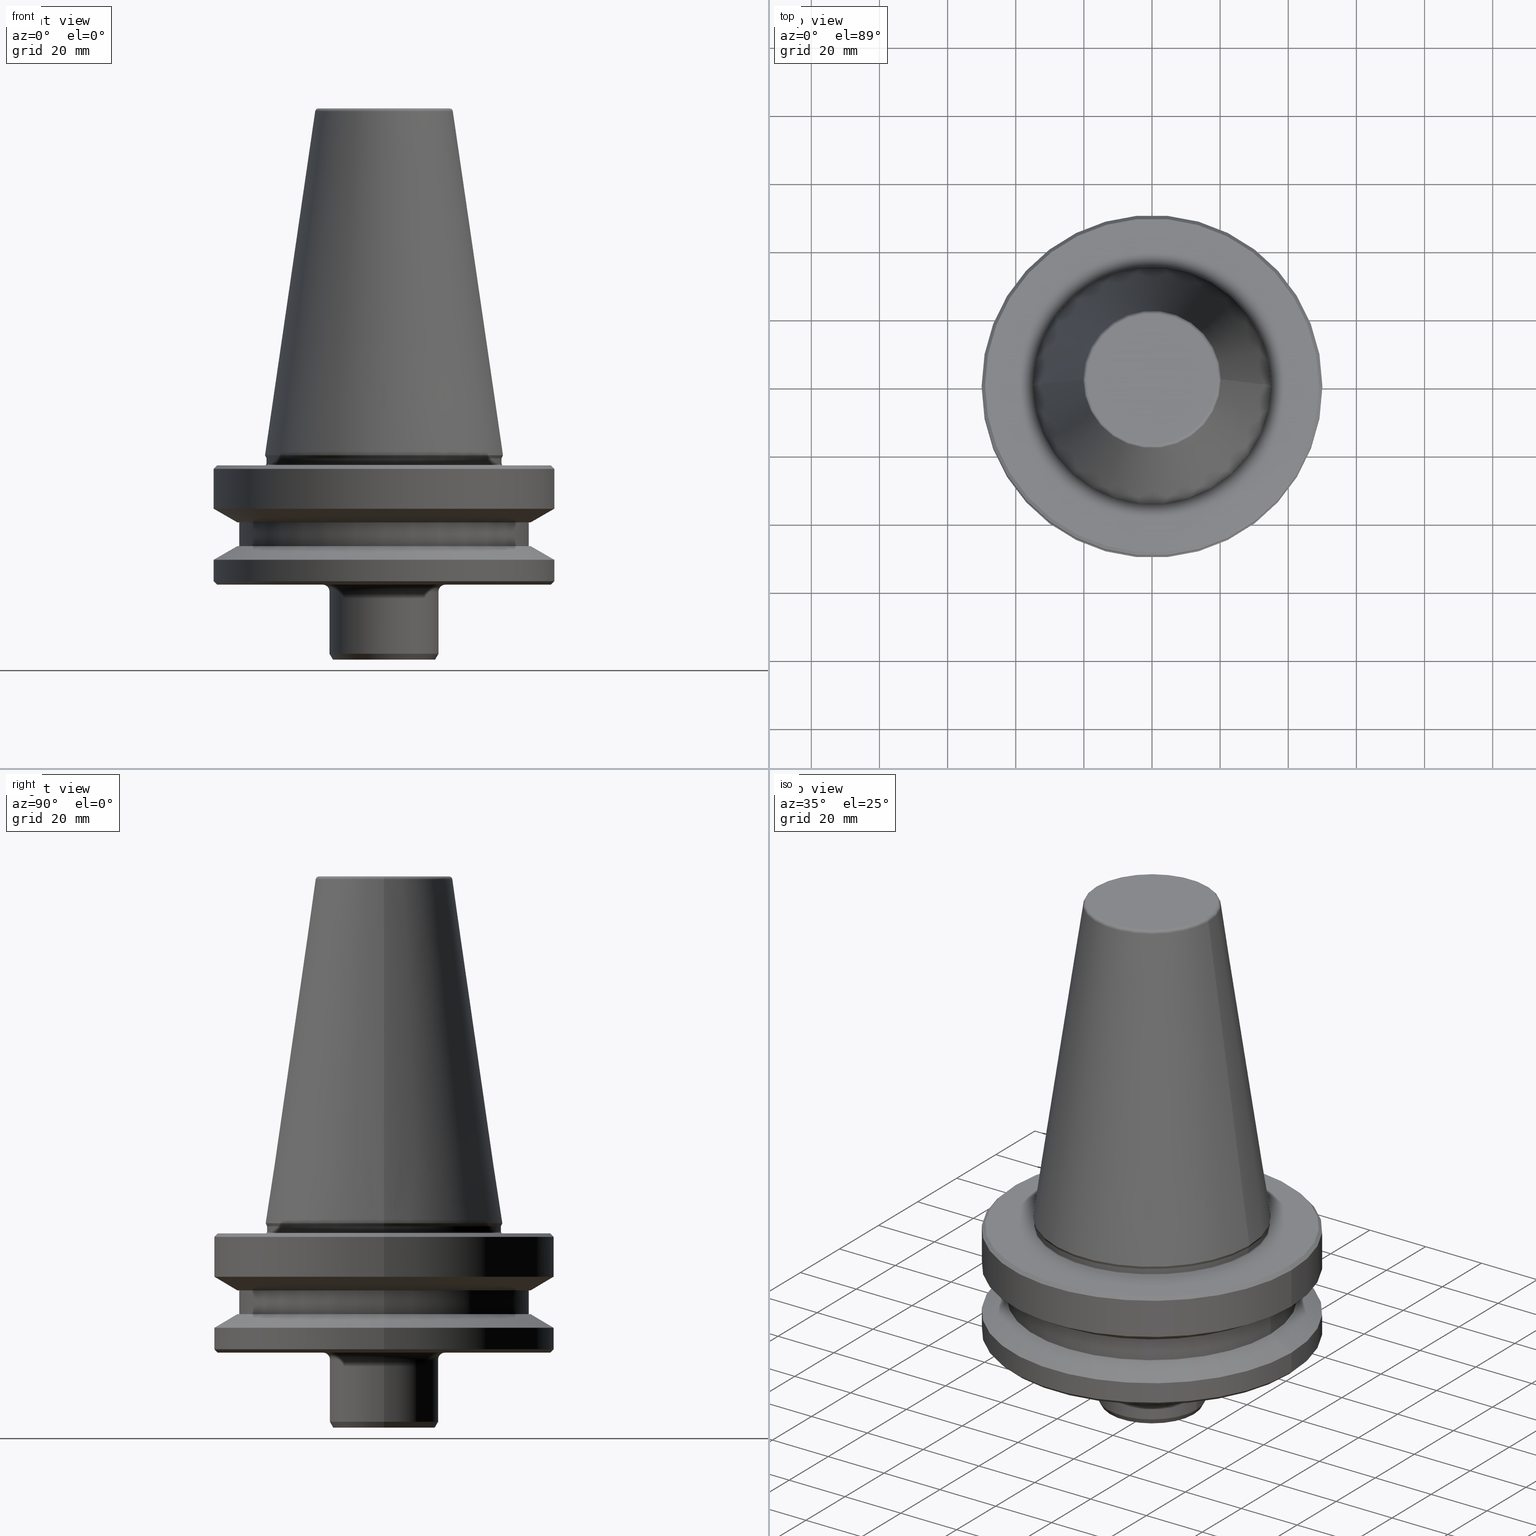
[diagram: canonical four-view strip — front | top / right | iso, engineering-drawing reading convention]
A machine part, canonical four-view strip (front | top / right | iso — engineering-drawing reading convention). The complete STEP part file that produces these views, byte-faithful:
ISO-10303-21;
HEADER;
FILE_DESCRIPTION (( 'STEP AP203' ),
    '1' );
FILE_NAME ('BT50 MT02 060 6.3G 15000 SL.STEP',
    '2019-05-24T05:10:47',
    ( '' ),
    ( '' ),
    'SwSTEP 2.0',
    'SolidWorks 2014',
    '' );
FILE_SCHEMA (( 'CONFIG_CONTROL_DESIGN' ));
ENDSEC;

DATA;
#1 = ORIENTED_EDGE ( 'NONE', *, *, #806, .T. ) ;
#2 = CARTESIAN_POINT ( 'NONE',  ( 0.0000000000000000000, 0.0000000000000000000, -58.26794919243198500 ) ) ;
#3 = AXIS2_PLACEMENT_3D ( 'NONE', #304, #308, #199 ) ;
#4 = PLANE ( 'NONE',  #3 ) ;
#5 = AXIS2_PLACEMENT_3D ( 'NONE', #860, #313, #557 ) ;
#6 = DATE_AND_TIME ( #215, #430 ) ;
#7 = CIRCLE ( 'NONE', #174, 43.07217782649175300 ) ;
#8 = CLOSED_SHELL ( 'NONE', ( #610, #732, #68, #121, #363, #547, #277, #929, #355, #133, #977, #191, #97, #913, #377, #423, #677, #112, #540, #704, #150, #602, #561, #528, #320, #707, #535, #996, #394, #141, #687, #368, #225, #58, #258, #375 ) ) ;
#9 = DIRECTION ( 'NONE',  ( -0.0000000000000000000, -0.0000000000000000000, 1.000000000000000000 ) ) ;
#10 = CYLINDRICAL_SURFACE ( 'NONE', #544, 50.00000000000027000 ) ;
#11 = PERSON_AND_ORGANIZATION_ROLE ( 'classification_officer' ) ;
#12 = DIRECTION ( 'NONE',  ( -0.0000000000000000000, -0.0000000000000000000, 1.000000000000000000 ) ) ;
#13 = CARTESIAN_POINT ( 'NONE',  ( 48.99999999999970900, 0.0000000000000000000, -37.99999999994118100 ) ) ;
#14 = EDGE_LOOP ( 'NONE', ( #628, #48, #696, #684 ) ) ;
#15 = DATE_AND_TIME ( #227, #437 ) ;
#16 = CC_DESIGN_DATE_AND_TIME_ASSIGNMENT ( #405, #177, ( #156 ) ) ;
#17 = ORIENTED_EDGE ( 'NONE', *, *, #303, .F. ) ;
#18 = DIRECTION ( 'NONE',  ( -0.1443082234293895400, 0.0000000000000000000, -0.9895327870518760800 ) ) ;
#19 = VERTEX_POINT ( 'NONE', #232 ) ;
#20 = AXIS2_PLACEMENT_3D ( 'NONE', #783, #94, #350 ) ;
#21 = ORIENTED_EDGE ( 'NONE', *, *, #237, .T. ) ;
#22 = AXIS2_PLACEMENT_3D ( 'NONE', #60, #623, #186 ) ;
#23 = CARTESIAN_POINT ( 'NONE',  ( 0.0000000000000000000, 0.0000000000000000000, -3.000000000001223900 ) ) ;
#24 = DIRECTION ( 'NONE',  ( 1.224646799147353200E-016, 1.000000000000000000, 0.0000000000000000000 ) ) ;
#25 = ORIENTED_EDGE ( 'NONE', *, *, #311, .T. ) ;
#26 = PLANE ( 'NONE',  #137 ) ;
#27 = ORIENTED_EDGE ( 'NONE', *, *, #181, .F. ) ;
#28 = FACE_OUTER_BOUND ( 'NONE', #169, .T. ) ;
#29 = ORIENTED_EDGE ( 'NONE', *, *, #345, .F. ) ;
#30 = DIRECTION ( 'NONE',  ( -0.0000000000000000000, -0.0000000000000000000, 1.000000000000000000 ) ) ;
#31 = ORIENTED_EDGE ( 'NONE', *, *, #478, .F. ) ;
#32 = FACE_OUTER_BOUND ( 'NONE', #420, .T. ) ;
#33 = CARTESIAN_POINT ( 'NONE',  ( -42.49999999999975800, 5.204748896376221700E-015, -19.70000000000070300 ) ) ;
#34 = PERSON_AND_ORGANIZATION ( #798, #464 ) ;
#35 = CARTESIAN_POINT ( 'NONE',  ( 0.0000000000000000000, 48.99999999999970900, -37.99999999994119500 ) ) ;
#36 = AXIS2_PLACEMENT_3D ( 'NONE', #96, #9, #993 ) ;
#37 = CONICAL_SURFACE ( 'NONE', #414, 34.92499999999964900, 0.1448138426689043500 ) ;
#38 = ORIENTED_EDGE ( 'NONE', *, *, #422, .T. ) ;
#39 = DIRECTION ( 'NONE',  ( -0.0000000000000000000, -0.0000000000000000000, 1.000000000000000000 ) ) ;
#40 = FACE_OUTER_BOUND ( 'NONE', #840, .T. ) ;
#41 = CARTESIAN_POINT ( 'NONE',  ( 0.0000000000000000000, 43.07217782648930900, -26.69999999993999400 ) ) ;
#42 = CARTESIAN_POINT ( 'NONE',  ( -43.07217782649175300, 5.699027233244335200E-015, -19.70000000000070300 ) ) ;
#43 = ORIENTED_EDGE ( 'NONE', *, *, #106, .T. ) ;
#44 = AXIS2_PLACEMENT_3D ( 'NONE', #173, #203, #709 ) ;
#45 = PERSON_AND_ORGANIZATION ( #798, #464 ) ;
#46 = AXIS2_PLACEMENT_3D ( 'NONE', #140, #718, #479 ) ;
#47 = DIRECTION ( 'NONE',  ( 1.000000000000000000, 0.0000000000000000000, 0.0000000000000000000 ) ) ;
#48 = ORIENTED_EDGE ( 'NONE', *, *, #948, .T. ) ;
#49 = ORIENTED_EDGE ( 'NONE', *, *, #324, .T. ) ;
#50 = EDGE_CURVE ( 'NONE', #228, #595, #120, .T. ) ;
#51 = DIRECTION ( 'NONE',  ( -1.000000000000000000, 0.0000000000000000000, 0.0000000000000000000 ) ) ;
#52 = AXIS2_PLACEMENT_3D ( 'NONE', #634, #908, #911 ) ;
#53 = DIRECTION ( 'NONE',  ( 1.000000000000000000, 0.0000000000000000000, 0.0000000000000000000 ) ) ;
#54 = VECTOR ( 'NONE', #444, 1000.000000000000000 ) ;
#55 = DIRECTION ( 'NONE',  ( -0.0000000000000000000, -0.0000000000000000000, 1.000000000000000000 ) ) ;
#56 = AXIS2_PLACEMENT_3D ( 'NONE', #373, #419, #393 ) ;
#57 = VERTEX_POINT ( 'NONE', #836 ) ;
#58 = ADVANCED_FACE ( 'NONE', ( #327 ), #894, .T. ) ;
#59 = CYLINDRICAL_SURFACE ( 'NONE', #774, 50.00000000000027000 ) ;
#60 = CARTESIAN_POINT ( 'NONE',  ( 0.0000000000000000000, 0.0000000000000000000, -3.000000000001223900 ) ) ;
#61 = LOCAL_TIME ( 10, 40, 47.00000000000000000, #267 ) ;
#62 = CIRCLE ( 'NONE', #209, 1.000000000000098100 ) ;
#63 = AXIS2_PLACEMENT_3D ( 'NONE', #581, #83, #856 ) ;
#64 = ORIENTED_EDGE ( 'NONE', *, *, #646, .T. ) ;
#65 = AXIS2_PLACEMENT_3D ( 'NONE', #330, #131, #604 ) ;
#66 = TOROIDAL_SURFACE ( 'NONE', #532, 19.21428366486965800, 1.000000000000100100 ) ;
#67 = DIRECTION ( 'NONE',  ( 0.0000000000000000000, 0.0000000000000000000, -1.000000000000000000 ) ) ;
#68 = ADVANCED_FACE ( 'NONE', ( #804 ), #492, .T. ) ;
#69 = DIRECTION ( 'NONE',  ( -1.000000000000000000, 1.224646799147353500E-016, 0.0000000000000000000 ) ) ;
#70 = DIRECTION ( 'NONE',  ( -0.0000000000000000000, -0.0000000000000000000, 1.000000000000000000 ) ) ;
#71 = DIRECTION ( 'NONE',  ( 1.000000000000000000, 0.0000000000000000000, 0.0000000000000000000 ) ) ;
#72 = AXIS2_PLACEMENT_3D ( 'NONE', #886, #627, #471 ) ;
#73 = DIRECTION ( 'NONE',  ( -0.0000000000000000000, -0.0000000000000000000, 1.000000000000000000 ) ) ;
#74 = ORIENTED_EDGE ( 'NONE', *, *, #283, .F. ) ;
#75 = EDGE_LOOP ( 'NONE', ( #280, #984, #466, #402 ) ) ;
#76 = DIRECTION ( 'NONE',  ( -0.0000000000000000000, -0.0000000000000000000, 1.000000000000000000 ) ) ;
#77 = CARTESIAN_POINT ( 'NONE',  ( 0.0000000000000000000, 0.0000000000000000000, -37.99999999994118100 ) ) ;
#78 = VERTEX_POINT ( 'NONE', #794 ) ;
#79 = CARTESIAN_POINT ( 'NONE',  ( -42.49999999999975800, 5.204748896376221700E-015, -26.69999999993998000 ) ) ;
#80 = AXIS2_PLACEMENT_3D ( 'NONE', #579, #567, #506 ) ;
#81 = AXIS2_PLACEMENT_3D ( 'NONE', #440, #744, #946 ) ;
#82 = VECTOR ( 'NONE', #796, 1000.000000000000000 ) ;
#83 = DIRECTION ( 'NONE',  ( 1.224646799147353200E-016, 1.000000000000000000, 0.0000000000000000000 ) ) ;
#84 = ORIENTED_EDGE ( 'NONE', *, *, #806, .F. ) ;
#85 = EDGE_CURVE ( 'NONE', #669, #211, #711, .T. ) ;
#86 = ORIENTED_EDGE ( 'NONE', *, *, #802, .T. ) ;
#87 = DIRECTION ( 'NONE',  ( -0.0000000000000000000, -0.0000000000000000000, 1.000000000000000000 ) ) ;
#88 = AXIS2_PLACEMENT_3D ( 'NONE', #411, #291, #128 ) ;
#89 = VECTOR ( 'NONE', #864, 1000.000000000000000 ) ;
#90 = DIRECTION ( 'NONE',  ( 1.000000000000000000, 0.0000000000000000000, 0.0000000000000000000 ) ) ;
#91 = FACE_OUTER_BOUND ( 'NONE', #75, .T. ) ;
#92 = DIRECTION ( 'NONE',  ( 1.000000000000000000, 0.0000000000000000000, 0.0000000000000000000 ) ) ;
#93 = FACE_OUTER_BOUND ( 'NONE', #784, .T. ) ;
#94 = DIRECTION ( 'NONE',  ( 0.0000000000000000000, -0.0000000000000000000, 1.000000000000000000 ) ) ;
#95 = CONICAL_SURFACE ( 'NONE', #188, 43.07217782649175300, 1.047197551196595400 ) ;
#96 = CARTESIAN_POINT ( 'NONE',  ( 0.0000000000000000000, 0.0000000000000000000, -37.99999999994118100 ) ) ;
#97 = ADVANCED_FACE ( 'NONE', ( #692 ), #99, .F. ) ;
#98 = ORIENTED_EDGE ( 'NONE', *, *, #264, .T. ) ;
#99 = TOROIDAL_SURFACE ( 'NONE', #898, 18.00000000000000400, 2.000000000000005300 ) ;
#100 = AXIS2_PLACEMENT_3D ( 'NONE', #344, #576, #270 ) ;
#101 = ORIENTED_EDGE ( 'NONE', *, *, #472, .T. ) ;
#102 = CARTESIAN_POINT ( 'NONE',  ( 0.0000000000000000000, 0.0000000000000000000, -3.000000000001223900 ) ) ;
#103 = ORIENTED_EDGE ( 'NONE', *, *, #905, .T. ) ;
#104 = CC_DESIGN_PERSON_AND_ORGANIZATION_ASSIGNMENT ( #620, #549, ( #156 ) ) ;
#105 = DIRECTION ( 'NONE',  ( -0.0000000000000000000, -0.0000000000000000000, 1.000000000000000000 ) ) ;
#106 = EDGE_CURVE ( 'NONE', #831, #669, #915, .T. ) ;
#107 = DIRECTION ( 'NONE',  ( 0.8660254037844376000, 0.0000000000000000000, 0.5000000000000020000 ) ) ;
#108 = AXIS2_PLACEMENT_3D ( 'NONE', #970, #443, #53 ) ;
#109 = CIRCLE ( 'NONE', #108, 19.21428366486965800 ) ;
#110 = CARTESIAN_POINT ( 'NONE',  ( -34.50000000000019900, 4.255647627037059800E-015, -2.500000000001723100 ) ) ;
#111 = CONICAL_SURFACE ( 'NONE', #921, 48.99999999999970900, 0.7853981633974482800 ) ;
#112 = ADVANCED_FACE ( 'NONE', ( #276 ), #773, .T. ) ;
#113 = AXIS2_PLACEMENT_3D ( 'NONE', #820, #302, #208 ) ;
#114 = FACE_BOUND ( 'NONE', #231, .T. ) ;
#115 = CARTESIAN_POINT ( 'NONE',  ( -43.07217782648930900, 0.0000000000000000000, -26.69999999993998000 ) ) ;
#116 = CIRCLE ( 'NONE', #845, 49.99999999999982200 ) ;
#117 = DIRECTION ( 'NONE',  ( 1.000000000000000000, 0.0000000000000000000, 0.0000000000000000000 ) ) ;
#118 = CYLINDRICAL_SURFACE ( 'NONE', #388, 49.99999999999982200 ) ;
#119 = ORIENTED_EDGE ( 'NONE', *, *, #370, .T. ) ;
#120 = CIRCLE ( 'NONE', #816, 42.49999999999975800 ) ;
#121 = ADVANCED_FACE ( 'NONE', ( #597 ), #800, .T. ) ;
#122 = DIRECTION ( 'NONE',  ( -0.0000000000000000000, -0.0000000000000000000, 1.000000000000000000 ) ) ;
#123 = EDGE_LOOP ( 'NONE', ( #679, #266 ) ) ;
#124 = AXIS2_PLACEMENT_3D ( 'NONE', #41, #846, #260 ) ;
#125 = ORIENTED_EDGE ( 'NONE', *, *, #541, .T. ) ;
#126 = CARTESIAN_POINT ( 'NONE',  ( 0.0000000000000000000, 0.0000000000000000000, -2.500000000001723100 ) ) ;
#127 = ORIENTED_EDGE ( 'NONE', *, *, #85, .F. ) ;
#128 = DIRECTION ( 'NONE',  ( 1.000000000000000000, 0.0000000000000000000, 0.0000000000000000000 ) ) ;
#129 = AXIS2_PLACEMENT_3D ( 'NONE', #972, #449, #938 ) ;
#130 = ORIENTED_EDGE ( 'NONE', *, *, #594, .T. ) ;
#131 = DIRECTION ( 'NONE',  ( 0.0000000000000000000, -1.000000000000000000, 0.0000000000000000000 ) ) ;
#132 = VECTOR ( 'NONE', #426, 1000.000000000000000 ) ;
#133 = ADVANCED_FACE ( 'NONE', ( #301 ), #952, .T. ) ;
#134 = CC_DESIGN_PERSON_AND_ORGANIZATION_ASSIGNMENT ( #252, #249, ( #564 ) ) ;
#135 = DIRECTION ( 'NONE',  ( -0.0000000000000000000, -0.0000000000000000000, 1.000000000000000000 ) ) ;
#136 = VECTOR ( 'NONE', #242, 1000.000000000000000 ) ;
#137 = AXIS2_PLACEMENT_3D ( 'NONE', #834, #509, #512 ) ;
#138 = CARTESIAN_POINT ( 'NONE',  ( -49.99999999999982200, 0.0000000000000000000, -30.69977999671412400 ) ) ;
#139 = LINE ( 'NONE', #499, #930 ) ;
#140 = CARTESIAN_POINT ( 'NONE',  ( 0.0000000000000000000, 0.0000000000000000000, 100.7999999999988900 ) ) ;
#141 = ADVANCED_FACE ( 'NONE', ( #183 ), #546, .T. ) ;
#142 = DIRECTION ( 'NONE',  ( 0.0000000000000000000, 0.0000000000000000000, -1.000000000000000000 ) ) ;
#143 = ORIENTED_EDGE ( 'NONE', *, *, #359, .T. ) ;
#144 = AXIS2_PLACEMENT_3D ( 'NONE', #496, #105, #494 ) ;
#145 = VECTOR ( 'NONE', #949, 999.9999999999998900 ) ;
#146 = APPROVAL_STATUS ( 'not_yet_approved' ) ;
#147 = DIRECTION ( 'NONE',  ( 0.0000000000000000000, 0.0000000000000000000, -1.000000000000000000 ) ) ;
#148 = ORIENTED_EDGE ( 'NONE', *, *, #603, .F. ) ;
#149 = EDGE_LOOP ( 'NONE', ( #354, #964, #608, #630 ) ) ;
#150 = ADVANCED_FACE ( 'NONE', ( #967, #365 ), #971, .F. ) ;
#151 = ORIENTED_EDGE ( 'NONE', *, *, #731, .F. ) ;
#152 = DIRECTION ( 'NONE',  ( -0.0000000000000000000, -0.0000000000000000000, 1.000000000000000000 ) ) ;
#153 = CARTESIAN_POINT ( 'NONE',  ( 43.07217782649175300, 0.0000000000000000000, -19.70000000000070300 ) ) ;
#154 = CARTESIAN_POINT ( 'NONE',  ( 0.0000000000000000000, 0.0000000000000000000, 108.3108805077434200 ) ) ;
#155 = ORIENTED_EDGE ( 'NONE', *, *, #317, .T. ) ;
#156 = PRODUCT_DEFINITION ( 'UNKNOWN', '', #418, #505 ) ;
#157 = CARTESIAN_POINT ( 'NONE',  ( 0.0000000000000000000, 0.0000000000000000000, 0.0000000000000000000 ) ) ;
#158 = AXIS2_PLACEMENT_3D ( 'NONE', #154, #30, #625 ) ;
#159 = ORIENTED_EDGE ( 'NONE', *, *, #447, .T. ) ;
#160 = CARTESIAN_POINT ( 'NONE',  ( 0.0000000000000000000, 0.0000000000000000000, -2.500000000001723100 ) ) ;
#161 = AXIS2_PLACEMENT_3D ( 'NONE', #534, #737, #366 ) ;
#162 = FACE_OUTER_BOUND ( 'NONE', #436, .T. ) ;
#163 = DIRECTION ( 'NONE',  ( -0.0000000000000000000, -0.0000000000000000000, 1.000000000000000000 ) ) ;
#164 = LINE ( 'NONE', #467, #953 ) ;
#165 = DIRECTION ( 'NONE',  ( 1.000000000000000000, 0.0000000000000000000, 0.0000000000000000000 ) ) ;
#166 = AXIS2_PLACEMENT_3D ( 'NONE', #645, #668, #651 ) ;
#167 = FACE_OUTER_BOUND ( 'NONE', #533, .T. ) ;
#168 = CARTESIAN_POINT ( 'NONE',  ( -49.99999999999982200, 6.123233995736744000E-015, 108.3108805077434200 ) ) ;
#169 = EDGE_LOOP ( 'NONE', ( #559, #49, #960, #281 ) ) ;
#170 = VECTOR ( 'NONE', #12, 1000.000000000000000 ) ;
#171 = EDGE_CURVE ( 'NONE', #723, #822, #573, .T. ) ;
#172 = ORIENTED_EDGE ( 'NONE', *, *, #324, .F. ) ;
#173 = CARTESIAN_POINT ( 'NONE',  ( 0.0000000000000000000, 0.0000000000000000000, -26.69999999993998000 ) ) ;
#174 = AXIS2_PLACEMENT_3D ( 'NONE', #927, #369, #459 ) ;
#175 = CARTESIAN_POINT ( 'NONE',  ( 0.0000000000000000000, 0.0000000000000000000, -58.26794919243198500 ) ) ;
#176 = ORIENTED_EDGE ( 'NONE', *, *, #451, .T. ) ;
#177 = DATE_TIME_ROLE ( 'creation_date' ) ;
#178 = ORIENTED_EDGE ( 'NONE', *, *, #237, .F. ) ;
#179 = DIRECTION ( 'NONE',  ( 1.224646799147353200E-016, 1.000000000000000000, 0.0000000000000000000 ) ) ;
#180 = CIRCLE ( 'NONE', #113, 42.49999999999975800 ) ;
#181 = EDGE_CURVE ( 'NONE', #607, #832, #391, .T. ) ;
#182 = CARTESIAN_POINT ( 'NONE',  ( 0.0000000000000000000, 0.0000000000000000000, -15.70022000322768300 ) ) ;
#183 = FACE_OUTER_BOUND ( 'NONE', #615, .T. ) ;
#184 = AXIS2_PLACEMENT_3D ( 'NONE', #781, #868, #485 ) ;
#185 = DIRECTION ( 'NONE',  ( 1.000000000000000000, 0.0000000000000000000, 0.0000000000000000000 ) ) ;
#186 = DIRECTION ( 'NONE',  ( 1.000000000000000000, 0.0000000000000000000, 0.0000000000000000000 ) ) ;
#187 = EDGE_CURVE ( 'NONE', #513, #333, #747, .T. ) ;
#188 = AXIS2_PLACEMENT_3D ( 'NONE', #931, #163, #902 ) ;
#189 = CIRCLE ( 'NONE', #63, 0.4999999999997228900 ) ;
#190 = CARTESIAN_POINT ( 'NONE',  ( 0.0000000000000000000, 0.0000000000000000000, -15.70022000322768300 ) ) ;
#191 = ADVANCED_FACE ( 'NONE', ( #162 ), #111, .T. ) ;
#192 = EDGE_LOOP ( 'NONE', ( #717, #119, #477, #279 ) ) ;
#193 = ORIENTED_EDGE ( 'NONE', *, *, #305, .T. ) ;
#194 = MANIFOLD_SOLID_BREP ( 'Revolve1', #8 ) ;
#195 = LOCAL_TIME ( 10, 40, 47.00000000000000000, #403 ) ;
#196 = LINE ( 'NONE', #880, #170 ) ;
#197 = CARTESIAN_POINT ( 'NONE',  ( -19.21428366486965800, 2.413662506824916700E-015, 101.7999999999989900 ) ) ;
#198 = FACE_OUTER_BOUND ( 'NONE', #764, .T. ) ;
#199 = DIRECTION ( 'NONE',  ( -1.000000000000000000, 0.0000000000000000000, -0.0000000000000000000 ) ) ;
#200 = AXIS2_PLACEMENT_3D ( 'NONE', #629, #87, #432 ) ;
#201 = ORIENTED_EDGE ( 'NONE', *, *, #771, .F. ) ;
#202 = LOCAL_TIME ( 10, 40, 47.00000000000000000, #415 ) ;
#203 = DIRECTION ( 'NONE',  ( -0.0000000000000000000, -0.0000000000000000000, 1.000000000000000000 ) ) ;
#204 = EDGE_CURVE ( 'NONE', #956, #211, #523, .T. ) ;
#205 = VERTEX_POINT ( 'NONE', #803 ) ;
#206 = VERTEX_POINT ( 'NONE', #957 ) ;
#207 = DIRECTION ( 'NONE',  ( 1.000000000000000000, 0.0000000000000000000, 0.0000000000000000000 ) ) ;
#208 = DIRECTION ( 'NONE',  ( 1.000000000000000000, 0.0000000000000000000, 0.0000000000000000000 ) ) ;
#209 = AXIS2_PLACEMENT_3D ( 'NONE', #830, #592, #788 ) ;
#210 = CONICAL_SURFACE ( 'NONE', #80, 50.00000000000027000, 0.7853981633974482800 ) ;
#211 = VERTEX_POINT ( 'NONE', #390 ) ;
#212 = ORIENTED_EDGE ( 'NONE', *, *, #339, .T. ) ;
#213 = DIRECTION ( 'NONE',  ( 1.000000000000000000, 0.0000000000000000000, 0.0000000000000000000 ) ) ;
#214 = AXIS2_PLACEMENT_3D ( 'NONE', #397, #552, #998 ) ;
#215 = CALENDAR_DATE ( 2019, 24, 5 ) ;
#216 = CARTESIAN_POINT ( 'NONE',  ( -48.99999999999970900, 6.062001655779369300E-015, -37.99999999994118100 ) ) ;
#217 = VECTOR ( 'NONE', #587, 1000.000000000000000 ) ;
#218 = AXIS2_PLACEMENT_3D ( 'NONE', #126, #801, #71 ) ;
#219 = APPROVAL_ROLE ( '' ) ;
#220 = ORIENTED_EDGE ( 'NONE', *, *, #416, .T. ) ;
#221 = CIRCLE ( 'NONE', #271, 34.99999999999992200 ) ;
#222 = APPROVAL ( #381, 'UNSPECIFIED' ) ;
#223 = DIRECTION ( 'NONE',  ( 1.000000000000000000, 0.0000000000000000000, 0.0000000000000000000 ) ) ;
#224 = ORIENTED_EDGE ( 'NONE', *, *, #941, .F. ) ;
#225 = ADVANCED_FACE ( 'NONE', ( #727 ), #906, .T. ) ;
#226 = AXIS2_PLACEMENT_3D ( 'NONE', #463, #779, #892 ) ;
#227 = CALENDAR_DATE ( 2019, 24, 5 ) ;
#228 = VERTEX_POINT ( 'NONE', #79 ) ;
#229 = ORIENTED_EDGE ( 'NONE', *, *, #598, .T. ) ;
#230 = VERTEX_POINT ( 'NONE', #698 ) ;
#231 = EDGE_LOOP ( 'NONE', ( #475, #151 ) ) ;
#232 = CARTESIAN_POINT ( 'NONE',  ( 50.00000000000027000, 0.0000000000000000000, -15.70022000322768300 ) ) ;
#233 = DIRECTION ( 'NONE',  ( -0.0000000000000000000, -0.0000000000000000000, 1.000000000000000000 ) ) ;
#234 = ORIENTED_EDGE ( 'NONE', *, *, #283, .T. ) ;
#235 = CYLINDRICAL_SURFACE ( 'NONE', #158, 49.99999999999982200 ) ;
#236 = DIRECTION ( 'NONE',  ( -0.0000000000000000000, -0.0000000000000000000, 1.000000000000000000 ) ) ;
#237 = EDGE_CURVE ( 'NONE', #586, #920, #314, .T. ) ;
#238 = VERTEX_POINT ( 'NONE', #469 ) ;
#239 = CARTESIAN_POINT ( 'NONE',  ( 0.0000000000000000000, 0.0000000000000000000, -37.99999999994118100 ) ) ;
#240 = FACE_BOUND ( 'NONE', #665, .T. ) ;
#241 = ORIENTED_EDGE ( 'NONE', *, *, #585, .T. ) ;
#242 = DIRECTION ( 'NONE',  ( -0.0000000000000000000, -0.0000000000000000000, 1.000000000000000000 ) ) ;
#243 = PERSON_AND_ORGANIZATION ( #798, #464 ) ;
#244 = LINE ( 'NONE', #542, #838 ) ;
#245 = AXIS2_PLACEMENT_3D ( 'NONE', #572, #362, #942 ) ;
#246 = EDGE_LOOP ( 'NONE', ( #761, #193, #879, #809 ) ) ;
#247 = DIRECTION ( 'NONE',  ( 0.1443082234293895400, 1.767266039134429700E-017, -0.9895327870518760800 ) ) ;
#248 = VECTOR ( 'NONE', #875, 1000.000000000000000 ) ;
#249 = PERSON_AND_ORGANIZATION_ROLE ( 'design_owner' ) ;
#250 = ORIENTED_EDGE ( 'NONE', *, *, #404, .T. ) ;
#251 = APPLICATION_PROTOCOL_DEFINITION ( 'international standard', 'config_control_design', 1994, #489 ) ;
#252 = PERSON_AND_ORGANIZATION ( #798, #464 ) ;
#253 = DIRECTION ( 'NONE',  ( -0.0000000000000000000, -0.0000000000000000000, 1.000000000000000000 ) ) ;
#254 =( GEOMETRIC_REPRESENTATION_CONTEXT ( 3 ) GLOBAL_UNCERTAINTY_ASSIGNED_CONTEXT ( ( #974 ) ) GLOBAL_UNIT_ASSIGNED_CONTEXT ( ( #560, #863, #328 ) ) REPRESENTATION_CONTEXT ( 'NONE', 'WORKASPACE' ) );
#255 = EDGE_LOOP ( 'NONE', ( #963, #159, #1, #31 ) ) ;
#256 = DIRECTION ( 'NONE',  ( 0.4999999999999805200, 0.0000000000000000000, 0.8660254037844499200 ) ) ;
#257 = ORIENTED_EDGE ( 'NONE', *, *, #345, .T. ) ;
#258 = ADVANCED_FACE ( 'NONE', ( #341 ), #887, .T. ) ;
#259 = EDGE_CURVE ( 'NONE', #238, #822, #925, .T. ) ;
#260 = DIRECTION ( 'NONE',  ( -1.000000000000000000, 0.0000000000000000000, -0.0000000000000000000 ) ) ;
#261 = DIRECTION ( 'NONE',  ( -0.0000000000000000000, -0.0000000000000000000, 1.000000000000000000 ) ) ;
#262 = FACE_BOUND ( 'NONE', #457, .T. ) ;
#263 = EDGE_LOOP ( 'NONE', ( #427, #618, #807, #352 ) ) ;
#264 = EDGE_CURVE ( 'NONE', #768, #976, #702, .T. ) ;
#265 = CIRCLE ( 'NONE', #757, 49.99999999999982200 ) ;
#266 = ORIENTED_EDGE ( 'NONE', *, *, #681, .T. ) ;
#267 = COORDINATED_UNIVERSAL_TIME_OFFSET ( 5, 30, .AHEAD. ) ;
#268 = CYLINDRICAL_SURFACE ( 'NONE', #621, 42.49999999999975800 ) ;
#269 = ORIENTED_EDGE ( 'NONE', *, *, #598, .F. ) ;
#270 = DIRECTION ( 'NONE',  ( 1.000000000000000000, 0.0000000000000000000, 0.0000000000000000000 ) ) ;
#271 = AXIS2_PLACEMENT_3D ( 'NONE', #102, #490, #939 ) ;
#272 = TOROIDAL_SURFACE ( 'NONE', #536, 34.99999999999992200, 0.4999999999997228900 ) ;
#273 = DIRECTION ( 'NONE',  ( 1.000000000000000000, 0.0000000000000000000, 0.0000000000000000000 ) ) ;
#274 = AXIS2_PLACEMENT_3D ( 'NONE', #35, #659, #935 ) ;
#275 = CARTESIAN_POINT ( 'NONE',  ( 0.0000000000000000000, 0.0000000000000000000, 0.0000000000000000000 ) ) ;
#276 = FACE_OUTER_BOUND ( 'NONE', #149, .T. ) ;
#277 = ADVANCED_FACE ( 'NONE', ( #678 ), #59, .T. ) ;
#278 = CARTESIAN_POINT ( 'NONE',  ( 0.0000000000000000000, 0.0000000000000000000, 108.3108805077434200 ) ) ;
#279 = ORIENTED_EDGE ( 'NONE', *, *, #507, .F. ) ;
#280 = ORIENTED_EDGE ( 'NONE', *, *, #309, .F. ) ;
#281 = ORIENTED_EDGE ( 'NONE', *, *, #670, .F. ) ;
#282 = DIRECTION ( 'NONE',  ( -0.0000000000000000000, -0.0000000000000000000, 1.000000000000000000 ) ) ;
#283 = EDGE_CURVE ( 'NONE', #205, #57, #476, .T. ) ;
#284 = AXIS2_PLACEMENT_3D ( 'NONE', #945, #881, #950 ) ;
#285 = FACE_OUTER_BOUND ( 'NONE', #988, .T. ) ;
#286 = CARTESIAN_POINT ( 'NONE',  ( 34.99999999999992200, 0.0000000000000000000, -3.000000000001334900 ) ) ;
#287 = VERTEX_POINT ( 'NONE', #907 ) ;
#288 = ORIENTED_EDGE ( 'NONE', *, *, #460, .F. ) ;
#289 = CARTESIAN_POINT ( 'NONE',  ( -50.00000000000027000, 6.123233995736798400E-015, 108.3108805077434200 ) ) ;
#290 = VECTOR ( 'NONE', #969, 1000.000000000000000 ) ;
#291 = DIRECTION ( 'NONE',  ( -0.0000000000000000000, -0.0000000000000000000, 1.000000000000000000 ) ) ;
#292 = AXIS2_PLACEMENT_3D ( 'NONE', #686, #55, #916 ) ;
#293 = CIRCLE ( 'NONE', #5, 34.99999999999992200 ) ;
#294 = CARTESIAN_POINT ( 'NONE',  ( 50.00000000000027000, 0.0000000000000000000, -4.000000000001335800 ) ) ;
#295 = FACE_OUTER_BOUND ( 'NONE', #331, .T. ) ;
#296 = CARTESIAN_POINT ( 'NONE',  ( 49.99999999999982200, 6.123233995736744000E-015, -30.69977999671412400 ) ) ;
#297 = CARTESIAN_POINT ( 'NONE',  ( 49.00000000000015600, 6.062001655779424500E-015, -3.000000000001223900 ) ) ;
#298 = SECURITY_CLASSIFICATION_LEVEL ( 'unclassified' ) ;
#299 = DIRECTION ( 'NONE',  ( -1.000000000000000000, 0.0000000000000000000, 0.0000000000000000000 ) ) ;
#300 = ORIENTED_EDGE ( 'NONE', *, *, #585, .F. ) ;
#301 = FACE_OUTER_BOUND ( 'NONE', #893, .T. ) ;
#302 = DIRECTION ( 'NONE',  ( -0.0000000000000000000, -0.0000000000000000000, 1.000000000000000000 ) ) ;
#303 = EDGE_CURVE ( 'NONE', #211, #956, #265, .T. ) ;
#304 = CARTESIAN_POINT ( 'NONE',  ( 0.0000000000000000000, 49.00000000000015600, -3.000000000001223900 ) ) ;
#305 = EDGE_CURVE ( 'NONE', #832, #607, #861, .T. ) ;
#306 = CARTESIAN_POINT ( 'NONE',  ( 42.49999999999975800, 0.0000000000000000000, -19.70000000000070300 ) ) ;
#307 = ORIENTED_EDGE ( 'NONE', *, *, #948, .F. ) ;
#308 = DIRECTION ( 'NONE',  ( 0.0000000000000000000, 0.0000000000000000000, -1.000000000000000000 ) ) ;
#309 = EDGE_CURVE ( 'NONE', #287, #663, #504, .T. ) ;
#310 = CIRCLE ( 'NONE', #292, 15.00000000000054400 ) ;
#311 = EDGE_CURVE ( 'NONE', #976, #57, #452, .T. ) ;
#312 = ORIENTED_EDGE ( 'NONE', *, *, #941, .T. ) ;
#313 = DIRECTION ( 'NONE',  ( -0.0000000000000000000, -0.0000000000000000000, 1.000000000000000000 ) ) ;
#314 = CIRCLE ( 'NONE', #379, 19.21428366486965800 ) ;
#315 = APPROVAL_ROLE ( '' ) ;
#316 = DIRECTION ( 'NONE',  ( -0.0000000000000000000, -0.0000000000000000000, 1.000000000000000000 ) ) ;
#317 = EDGE_CURVE ( 'NONE', #636, #920, #657, .T. ) ;
#318 = CARTESIAN_POINT ( 'NONE',  ( 34.92499999999964900, 0.0000000000000000000, -1.084202172485504400E-016 ) ) ;
#319 = TOROIDAL_SURFACE ( 'NONE', #129, 18.00000000000000400, 2.000000000000005300 ) ;
#320 = ADVANCED_FACE ( 'NONE', ( #240, #32 ), #851, .F. ) ;
#321 = CARTESIAN_POINT ( 'NONE',  ( 0.0000000000000000000, 0.0000000000000000000, -19.70000000000070300 ) ) ;
#322 = LINE ( 'NONE', #975, #730 ) ;
#323 = DIRECTION ( 'NONE',  ( -0.0000000000000000000, -0.0000000000000000000, 1.000000000000000000 ) ) ;
#324 = EDGE_CURVE ( 'NONE', #517, #723, #139, .T. ) ;
#325 = EDGE_CURVE ( 'NONE', #382, #19, #347, .T. ) ;
#326 = ORIENTED_EDGE ( 'NONE', *, *, #187, .F. ) ;
#327 = FACE_OUTER_BOUND ( 'NONE', #358, .T. ) ;
#328 =( NAMED_UNIT ( * ) SI_UNIT ( $, .STERADIAN. ) SOLID_ANGLE_UNIT ( ) );
#329 = CARTESIAN_POINT ( 'NONE',  ( 0.0000000000000000000, 0.0000000000000000000, 108.3108805077434200 ) ) ;
#330 = CARTESIAN_POINT ( 'NONE',  ( 18.00000000000000400, 0.0000000000000000000, -39.99999999994119500 ) ) ;
#331 = EDGE_LOOP ( 'NONE', ( #176, #795, #441, #201 ) ) ;
#332 = DIRECTION ( 'NONE',  ( 1.000000000000000000, 0.0000000000000000000, 0.0000000000000000000 ) ) ;
#333 = VERTEX_POINT ( 'NONE', #306 ) ;
#334 = AXIS2_PLACEMENT_3D ( 'NONE', #336, #335, #919 ) ;
#335 = DIRECTION ( 'NONE',  ( -0.0000000000000000000, -0.0000000000000000000, 1.000000000000000000 ) ) ;
#336 = CARTESIAN_POINT ( 'NONE',  ( 0.0000000000000000000, 0.0000000000000000000, 100.9443082234284800 ) ) ;
#337 = CARTESIAN_POINT ( 'NONE',  ( -34.49999999999997200, 4.225031457058365800E-015, -0.9114154412159791700 ) ) ;
#338 = AXIS2_PLACEMENT_3D ( 'NONE', #157, #511, #695 ) ;
#339 = EDGE_CURVE ( 'NONE', #876, #413, #910, .T. ) ;
#340 = CARTESIAN_POINT ( 'NONE',  ( 43.07217782649175300, 0.0000000000000000000, -19.70000000000070300 ) ) ;
#341 = FACE_OUTER_BOUND ( 'NONE', #356, .T. ) ;
#342 = CC_DESIGN_PERSON_AND_ORGANIZATION_ASSIGNMENT ( #243, #713, ( #418 ) ) ;
#343 = CIRCLE ( 'NONE', #44, 43.07217782648930900 ) ;
#344 = CARTESIAN_POINT ( 'NONE',  ( 0.0000000000000000000, 0.0000000000000000000, -39.99999999994118100 ) ) ;
#345 = EDGE_CURVE ( 'NONE', #636, #413, #322, .T. ) ;
#346 = EDGE_CURVE ( 'NONE', #57, #976, #116, .T. ) ;
#347 = LINE ( 'NONE', #153, #529 ) ;
#348 = DIRECTION ( 'NONE',  ( -0.0000000000000000000, -0.0000000000000000000, 1.000000000000000000 ) ) ;
#349 = LINE ( 'NONE', #772, #145 ) ;
#350 = DIRECTION ( 'NONE',  ( 1.000000000000000000, 0.0000000000000000000, 0.0000000000000000000 ) ) ;
#351 = EDGE_LOOP ( 'NONE', ( #735, #558 ) ) ;
#352 = ORIENTED_EDGE ( 'NONE', *, *, #398, .F. ) ;
#353 = AXIS2_PLACEMENT_3D ( 'NONE', #617, #425, #92 ) ;
#354 = ORIENTED_EDGE ( 'NONE', *, *, #648, .F. ) ;
#355 = ADVANCED_FACE ( 'NONE', ( #295 ), #484, .T. ) ;
#356 = EDGE_LOOP ( 'NONE', ( #917, #740, #257, #582 ) ) ;
#357 = AXIS2_PLACEMENT_3D ( 'NONE', #278, #516, #844 ) ;
#358 = EDGE_LOOP ( 'NONE', ( #537, #38, #406, #433 ) ) ;
#359 = EDGE_CURVE ( 'NONE', #566, #287, #685, .T. ) ;
#360 = EDGE_LOOP ( 'NONE', ( #847, #873, #462, #326 ) ) ;
#361 = EDGE_CURVE ( 'NONE', #206, #813, #510, .T. ) ;
#362 = DIRECTION ( 'NONE',  ( -0.0000000000000000000, -0.0000000000000000000, 1.000000000000000000 ) ) ;
#363 = ADVANCED_FACE ( 'NONE', ( #93 ), #272, .F. ) ;
#364 = CARTESIAN_POINT ( 'NONE',  ( 34.49999999999997200, 0.0000000000000000000, -0.9114154412159791700 ) ) ;
#365 = FACE_BOUND ( 'NONE', #918, .T. ) ;
#366 = DIRECTION ( 'NONE',  ( 1.000000000000000000, 0.0000000000000000000, 0.0000000000000000000 ) ) ;
#367 = DIRECTION ( 'NONE',  ( -0.0000000000000000000, -0.0000000000000000000, 1.000000000000000000 ) ) ;
#368 = ADVANCED_FACE ( 'NONE', ( #664 ), #891, .F. ) ;
#369 = DIRECTION ( 'NONE',  ( -0.0000000000000000000, -0.0000000000000000000, 1.000000000000000000 ) ) ;
#370 = EDGE_CURVE ( 'NONE', #211, #976, #458, .T. ) ;
#371 = CARTESIAN_POINT ( 'NONE',  ( 0.0000000000000000000, 0.0000000000000000000, -60.00000000000001400 ) ) ;
#372 = FACE_OUTER_BOUND ( 'NONE', #937, .T. ) ;
#373 = CARTESIAN_POINT ( 'NONE',  ( 0.0000000000000000000, 0.0000000000000000000, -37.99999999994118100 ) ) ;
#374 = FACE_OUTER_BOUND ( 'NONE', #539, .T. ) ;
#375 = ADVANCED_FACE ( 'NONE', ( #842 ), #66, .T. ) ;
#376 = ORIENTED_EDGE ( 'NONE', *, *, #85, .T. ) ;
#377 = ADVANCED_FACE ( 'NONE', ( #40 ), #616, .T. ) ;
#378 = DIRECTION ( 'NONE',  ( 1.000000000000000000, 0.0000000000000000000, 0.0000000000000000000 ) ) ;
#379 = AXIS2_PLACEMENT_3D ( 'NONE', #890, #991, #461 ) ;
#380 = AXIS2_PLACEMENT_3D ( 'NONE', #786, #316, #855 ) ;
#381 = APPROVAL_STATUS ( 'not_yet_approved' ) ;
#382 = VERTEX_POINT ( 'NONE', #340 ) ;
#383 = DIRECTION ( 'NONE',  ( -0.0000000000000000000, -0.0000000000000000000, 1.000000000000000000 ) ) ;
#384 = VERTEX_POINT ( 'NONE', #954 ) ;
#385 = DIRECTION ( 'NONE',  ( -0.7071067811865474600, 8.659560562354931600E-017, 0.7071067811865475700 ) ) ;
#386 = CONICAL_SURFACE ( 'NONE', #56, 48.99999999999970900, 0.7853981633974482800 ) ;
#387 = DIRECTION ( 'NONE',  ( -0.0000000000000000000, -0.0000000000000000000, 1.000000000000000000 ) ) ;
#388 = AXIS2_PLACEMENT_3D ( 'NONE', #521, #39, #522 ) ;
#389 = AXIS2_PLACEMENT_3D ( 'NONE', #888, #147, #299 ) ;
#390 = CARTESIAN_POINT ( 'NONE',  ( -49.99999999999982200, 6.123233995736744000E-015, -36.99999999994106800 ) ) ;
#391 = CIRCLE ( 'NONE', #465, 16.00000000000000000 ) ;
#392 = AXIS2_PLACEMENT_3D ( 'NONE', #371, #73, #611 ) ;
#393 = DIRECTION ( 'NONE',  ( 1.000000000000000000, 0.0000000000000000000, 0.0000000000000000000 ) ) ;
#394 = ADVANCED_FACE ( 'NONE', ( #434 ), #10, .T. ) ;
#395 = EDGE_CURVE ( 'NONE', #238, #19, #815, .T. ) ;
#396 = DIRECTION ( 'NONE',  ( -0.0000000000000000000, -0.0000000000000000000, 1.000000000000000000 ) ) ;
#397 = CARTESIAN_POINT ( 'NONE',  ( 0.0000000000000000000, 0.0000000000000000000, -19.70000000000070300 ) ) ;
#398 = EDGE_CURVE ( 'NONE', #822, #723, #871, .T. ) ;
#399 = CIRCLE ( 'NONE', #65, 2.000000000000001800 ) ;
#400 = DIRECTION ( 'NONE',  ( 1.000000000000000000, 0.0000000000000000000, 0.0000000000000000000 ) ) ;
#401 = EDGE_CURVE ( 'NONE', #563, #517, #638, .T. ) ;
#402 = ORIENTED_EDGE ( 'NONE', *, *, #574, .T. ) ;
#403 = COORDINATED_UNIVERSAL_TIME_OFFSET ( 5, 30, .AHEAD. ) ;
#404 = EDGE_CURVE ( 'NONE', #19, #238, #409, .T. ) ;
#405 = DATE_AND_TIME ( #981, #202 ) ;
#406 = ORIENTED_EDGE ( 'NONE', *, *, #575, .T. ) ;
#407 = VERTEX_POINT ( 'NONE', #995 ) ;
#408 = CARTESIAN_POINT ( 'NONE',  ( -18.00000000000000400, 2.204364238465235800E-015, -39.99999999994119500 ) ) ;
#409 = CIRCLE ( 'NONE', #577, 50.00000000000027000 ) ;
#410 = DIRECTION ( 'NONE',  ( -0.0000000000000000000, -0.0000000000000000000, 1.000000000000000000 ) ) ;
#411 = CARTESIAN_POINT ( 'NONE',  ( 0.0000000000000000000, 0.0000000000000000000, -0.9114154412159791700 ) ) ;
#412 = DIRECTION ( 'NONE',  ( -0.0000000000000000000, -0.0000000000000000000, 1.000000000000000000 ) ) ;
#413 = VERTEX_POINT ( 'NONE', #714 ) ;
#414 = AXIS2_PLACEMENT_3D ( 'NONE', #872, #67, #639 ) ;
#415 = COORDINATED_UNIVERSAL_TIME_OFFSET ( 5, 30, .AHEAD. ) ;
#416 = EDGE_CURVE ( 'NONE', #593, #230, #221, .T. ) ;
#417 = CARTESIAN_POINT ( 'NONE',  ( 0.0000000000000000000, 0.0000000000000000000, 100.9443082234284800 ) ) ;
#418 = PRODUCT_DEFINITION_FORMATION_WITH_SPECIFIED_SOURCE ( 'ANY', '', #564, .NOT_KNOWN. ) ;
#419 = DIRECTION ( 'NONE',  ( -0.0000000000000000000, -0.0000000000000000000, 1.000000000000000000 ) ) ;
#420 = EDGE_LOOP ( 'NONE', ( #495, #643 ) ) ;
#421 = ORIENTED_EDGE ( 'NONE', *, *, #574, .F. ) ;
#422 = EDGE_CURVE ( 'NONE', #876, #990, #985, .T. ) ;
#423 = ADVANCED_FACE ( 'NONE', ( #198 ), #26, .F. ) ;
#424 = CIRCLE ( 'NONE', #72, 0.4999999999997228900 ) ;
#425 = DIRECTION ( 'NONE',  ( -0.0000000000000000000, -0.0000000000000000000, 1.000000000000000000 ) ) ;
#426 = DIRECTION ( 'NONE',  ( -0.8660254037844390400, 0.0000000000000000000, -0.4999999999999993300 ) ) ;
#427 = ORIENTED_EDGE ( 'NONE', *, *, #259, .F. ) ;
#428 = CARTESIAN_POINT ( 'NONE',  ( 0.0000000000000000000, 0.0000000000000000000, 108.3108805077434200 ) ) ;
#429 = DIRECTION ( 'NONE',  ( -1.000000000000000000, 0.0000000000000000000, 0.0000000000000000000 ) ) ;
#430 = LOCAL_TIME ( 10, 40, 47.00000000000000000, #633 ) ;
#431 = LINE ( 'NONE', #599, #217 ) ;
#432 = DIRECTION ( 'NONE',  ( 1.000000000000000000, 0.0000000000000000000, 0.0000000000000000000 ) ) ;
#433 = ORIENTED_EDGE ( 'NONE', *, *, #959, .F. ) ;
#434 = FACE_OUTER_BOUND ( 'NONE', #263, .T. ) ;
#435 = CARTESIAN_POINT ( 'NONE',  ( -50.00000000000027000, 0.0000000000000000000, -4.000000000001335800 ) ) ;
#436 = EDGE_LOOP ( 'NONE', ( #43, #376, #760, #288 ) ) ;
#437 = LOCAL_TIME ( 10, 40, 47.00000000000000000, #644 ) ;
#438 = CARTESIAN_POINT ( 'NONE',  ( 16.00000000000000000, 0.0000000000000000000, 108.3108805077434200 ) ) ;
#439 = ORIENTED_EDGE ( 'NONE', *, *, #370, .F. ) ;
#440 = CARTESIAN_POINT ( 'NONE',  ( 0.0000000000000000000, 43.07217782649175300, -19.70000000000071700 ) ) ;
#441 = ORIENTED_EDGE ( 'NONE', *, *, #992, .F. ) ;
#442 = ORIENTED_EDGE ( 'NONE', *, *, #181, .T. ) ;
#443 = DIRECTION ( 'NONE',  ( -0.0000000000000000000, -0.0000000000000000000, 1.000000000000000000 ) ) ;
#444 = DIRECTION ( 'NONE',  ( -0.0000000000000000000, -0.0000000000000000000, 1.000000000000000000 ) ) ;
#445 = EDGE_LOOP ( 'NONE', ( #903, #652 ) ) ;
#446 = CYLINDRICAL_SURFACE ( 'NONE', #166, 16.00000000000000000 ) ;
#447 = EDGE_CURVE ( 'NONE', #636, #407, #790, .T. ) ;
#448 = ORIENTED_EDGE ( 'NONE', *, *, #770, .F. ) ;
#449 = DIRECTION ( 'NONE',  ( -0.0000000000000000000, -0.0000000000000000000, 1.000000000000000000 ) ) ;
#450 = ORIENTED_EDGE ( 'NONE', *, *, #460, .T. ) ;
#451 = EDGE_CURVE ( 'NONE', #595, #228, #180, .T. ) ;
#452 = CIRCLE ( 'NONE', #821, 49.99999999999982200 ) ;
#453 = APPROVAL_DATE_TIME ( #661, #590 ) ;
#454 = CARTESIAN_POINT ( 'NONE',  ( 34.92499999999964900, 4.277078946022088300E-015, 0.0000000000000000000 ) ) ;
#455 = LINE ( 'NONE', #858, #662 ) ;
#456 = CARTESIAN_POINT ( 'NONE',  ( 0.0000000000000000000, 0.0000000000000000000, -36.99999999994106800 ) ) ;
#457 = EDGE_LOOP ( 'NONE', ( #936, #470 ) ) ;
#458 = LINE ( 'NONE', #168, #248 ) ;
#459 = DIRECTION ( 'NONE',  ( 1.000000000000000000, 0.0000000000000000000, 0.0000000000000000000 ) ) ;
#460 = EDGE_CURVE ( 'NONE', #831, #956, #631, .T. ) ;
#461 = DIRECTION ( 'NONE',  ( 1.000000000000000000, 0.0000000000000000000, 0.0000000000000000000 ) ) ;
#462 = ORIENTED_EDGE ( 'NONE', *, *, #771, .T. ) ;
#463 = CARTESIAN_POINT ( 'NONE',  ( 0.0000000000000000000, 0.0000000000000000000, -19.70000000000070300 ) ) ;
#464 = ORGANIZATION ( 'UNSPECIFIED', 'UNSPECIFIED', '' ) ;
#465 = AXIS2_PLACEMENT_3D ( 'NONE', #175, #236, #932 ) ;
#466 = ORIENTED_EDGE ( 'NONE', *, *, #591, .T. ) ;
#467 = CARTESIAN_POINT ( 'NONE',  ( -15.00000000000054400, 1.836970198721096600E-015, -60.00000000000001400 ) ) ;
#468 = EDGE_LOOP ( 'NONE', ( #719, #312, #994, #710 ) ) ;
#469 = CARTESIAN_POINT ( 'NONE',  ( -50.00000000000027000, 6.123233995736798400E-015, -15.70022000322768300 ) ) ;
#470 = ORIENTED_EDGE ( 'NONE', *, *, #187, .T. ) ;
#471 = DIRECTION ( 'NONE',  ( 0.0000000000000000000, 0.0000000000000000000, -1.000000000000000000 ) ) ;
#472 = EDGE_CURVE ( 'NONE', #663, #78, #722, .T. ) ;
#473 = CIRCLE ( 'NONE', #161, 18.00000000000000400 ) ;
#474 = DIRECTION ( 'NONE',  ( -0.4999999999999805200, 6.123233995736526900E-017, 0.8660254037844499200 ) ) ;
#475 = ORIENTED_EDGE ( 'NONE', *, *, #416, .F. ) ;
#476 = LINE ( 'NONE', #296, #89 ) ;
#477 = ORIENTED_EDGE ( 'NONE', *, *, #346, .F. ) ;
#478 = EDGE_CURVE ( 'NONE', #920, #586, #109, .T. ) ;
#479 = DIRECTION ( 'NONE',  ( 1.000000000000000000, 0.0000000000000000000, 0.0000000000000000000 ) ) ;
#480 = APPROVAL_PERSON_ORGANIZATION ( #553, #590, #315 ) ;
#481 = FACE_OUTER_BOUND ( 'NONE', #897, .T. ) ;
#482 = DIRECTION ( 'NONE',  ( -0.0000000000000000000, -0.0000000000000000000, 1.000000000000000000 ) ) ;
#483 = ORIENTED_EDGE ( 'NONE', *, *, #401, .F. ) ;
#484 = CYLINDRICAL_SURFACE ( 'NONE', #745, 42.49999999999975800 ) ;
#485 = DIRECTION ( 'NONE',  ( 1.000000000000000000, 0.0000000000000000000, 0.0000000000000000000 ) ) ;
#486 = CARTESIAN_POINT ( 'NONE',  ( 0.0000000000000000000, 0.0000000000000000000, -0.9114154412159791700 ) ) ;
#487 = CARTESIAN_POINT ( 'NONE',  ( 0.0000000000000000000, 0.0000000000000000000, 108.3108805077434200 ) ) ;
#488 = EDGE_CURVE ( 'NONE', #691, #607, #520, .T. ) ;
#489 = APPLICATION_CONTEXT ( 'configuration controlled 3d designs of mechanical parts and assemblies' ) ;
#490 = DIRECTION ( 'NONE',  ( -0.0000000000000000000, -0.0000000000000000000, 1.000000000000000000 ) ) ;
#491 = ORIENTED_EDGE ( 'NONE', *, *, #802, .F. ) ;
#492 = CONICAL_SURFACE ( 'NONE', #797, 34.49999999999997200, 0.4363323129985352000 ) ;
#493 = ORIENTED_EDGE ( 'NONE', *, *, #451, .F. ) ;
#494 = DIRECTION ( 'NONE',  ( 1.000000000000000000, 0.0000000000000000000, 0.0000000000000000000 ) ) ;
#495 = ORIENTED_EDGE ( 'NONE', *, *, #660, .T. ) ;
#496 = CARTESIAN_POINT ( 'NONE',  ( 0.0000000000000000000, 0.0000000000000000000, -39.99999999994118100 ) ) ;
#497 = CARTESIAN_POINT ( 'NONE',  ( -50.00000000000027000, 6.123233995736798400E-015, -4.000000000001335800 ) ) ;
#498 = CARTESIAN_POINT ( 'NONE',  ( 49.99999999999982200, 0.0000000000000000000, -36.99999999994106800 ) ) ;
#499 = CARTESIAN_POINT ( 'NONE',  ( 50.00000000000027000, 6.123233995736798400E-015, -4.000000000001335800 ) ) ;
#500 = LINE ( 'NONE', #673, #82 ) ;
#501 = EDGE_CURVE ( 'NONE', #384, #691, #310, .T. ) ;
#502 = CARTESIAN_POINT ( 'NONE',  ( -16.00000000000000000, 1.959434878635765100E-015, 108.3108805077434200 ) ) ;
#503 = ORIENTED_EDGE ( 'NONE', *, *, #591, .F. ) ;
#504 = CIRCLE ( 'NONE', #789, 2.000000000000005300 ) ;
#505 = DESIGN_CONTEXT ( 'detailed design', #640, 'design' ) ;
#506 = DIRECTION ( 'NONE',  ( -1.000000000000000000, 0.0000000000000000000, 0.0000000000000000000 ) ) ;
#507 = EDGE_CURVE ( 'NONE', #956, #57, #500, .T. ) ;
#508 = CIRCLE ( 'NONE', #605, 43.07217782648930900 ) ;
#509 = DIRECTION ( 'NONE',  ( 0.0000000000000000000, 0.0000000000000000000, -1.000000000000000000 ) ) ;
#510 = CIRCLE ( 'NONE', #926, 34.50000000000019900 ) ;
#511 = DIRECTION ( 'NONE',  ( 0.0000000000000000000, 0.0000000000000000000, -1.000000000000000000 ) ) ;
#512 = DIRECTION ( 'NONE',  ( -1.000000000000000000, 0.0000000000000000000, -0.0000000000000000000 ) ) ;
#513 = VERTEX_POINT ( 'NONE', #33 ) ;
#514 = VECTOR ( 'NONE', #385, 1000.000000000000000 ) ;
#515 = DIRECTION ( 'NONE',  ( -0.7071067811865474600, 0.0000000000000000000, -0.7071067811865475700 ) ) ;
#516 = DIRECTION ( 'NONE',  ( -0.0000000000000000000, -0.0000000000000000000, 1.000000000000000000 ) ) ;
#517 = VERTEX_POINT ( 'NONE', #297 ) ;
#518 = ORIENTED_EDGE ( 'NONE', *, *, #726, .F. ) ;
#519 = DIRECTION ( 'NONE',  ( 1.000000000000000000, 0.0000000000000000000, 0.0000000000000000000 ) ) ;
#520 = LINE ( 'NONE', #799, #699 ) ;
#521 = CARTESIAN_POINT ( 'NONE',  ( 0.0000000000000000000, 0.0000000000000000000, 108.3108805077434200 ) ) ;
#522 = DIRECTION ( 'NONE',  ( 1.000000000000000000, 0.0000000000000000000, 0.0000000000000000000 ) ) ;
#523 = CIRCLE ( 'NONE', #962, 49.99999999999982200 ) ;
#524 = CC_DESIGN_PERSON_AND_ORGANIZATION_ASSIGNMENT ( #34, #841, ( #418 ) ) ;
#525 = FACE_OUTER_BOUND ( 'NONE', #445, .T. ) ;
#526 = DIRECTION ( 'NONE',  ( -0.0000000000000000000, -0.0000000000000000000, 1.000000000000000000 ) ) ;
#527 = AXIS2_PLACEMENT_3D ( 'NONE', #160, #383, #332 ) ;
#528 = ADVANCED_FACE ( 'NONE', ( #285 ), #857, .T. ) ;
#529 = VECTOR ( 'NONE', #107, 999.9999999999998900 ) ;
#530 = SHAPE_DEFINITION_REPRESENTATION ( #724, #720 ) ;
#531 = ORIENTED_EDGE ( 'NONE', *, *, #422, .F. ) ;
#532 = AXIS2_PLACEMENT_3D ( 'NONE', #904, #253, #725 ) ;
#533 = EDGE_LOOP ( 'NONE', ( #86, #155, #178, #84 ) ) ;
#534 = CARTESIAN_POINT ( 'NONE',  ( 0.0000000000000000000, 0.0000000000000000000, -37.99999999994118100 ) ) ;
#535 = ADVANCED_FACE ( 'NONE', ( #676, #262 ), #792, .F. ) ;
#536 = AXIS2_PLACEMENT_3D ( 'NONE', #900, #410, #825 ) ;
#537 = ORIENTED_EDGE ( 'NONE', *, *, #339, .F. ) ;
#538 = DIRECTION ( 'NONE',  ( 1.000000000000000000, 0.0000000000000000000, 0.0000000000000000000 ) ) ;
#539 = EDGE_LOOP ( 'NONE', ( #307, #103, #741, #828 ) ) ;
#540 = ADVANCED_FACE ( 'NONE', ( #883 ), #446, .T. ) ;
#541 = EDGE_CURVE ( 'NONE', #832, #663, #901, .T. ) ;
#542 = CARTESIAN_POINT ( 'NONE',  ( 42.49999999999975800, 0.0000000000000000000, 108.3108805077434200 ) ) ;
#543 = AXIS2_PLACEMENT_3D ( 'NONE', #680, #545, #814 ) ;
#544 = AXIS2_PLACEMENT_3D ( 'NONE', #428, #261, #649 ) ;
#545 = DIRECTION ( 'NONE',  ( -0.0000000000000000000, -0.0000000000000000000, 1.000000000000000000 ) ) ;
#546 = CONICAL_SURFACE ( 'NONE', #389, 50.00000000000027000, 0.7853981633974482800 ) ;
#547 = ADVANCED_FACE ( 'NONE', ( #28 ), #210, .T. ) ;
#548 = CIRCLE ( 'NONE', #36, 48.99999999999970900 ) ;
#549 = PERSON_AND_ORGANIZATION_ROLE ( 'creator' ) ;
#550 = DIRECTION ( 'NONE',  ( 1.000000000000000000, 0.0000000000000000000, 0.0000000000000000000 ) ) ;
#551 = CARTESIAN_POINT ( 'NONE',  ( -34.49999999999997200, 4.225031457058372100E-015, -0.9114154412159791700 ) ) ;
#552 = DIRECTION ( 'NONE',  ( -0.0000000000000000000, -0.0000000000000000000, 1.000000000000000000 ) ) ;
#553 = PERSON_AND_ORGANIZATION ( #798, #464 ) ;
#554 = DIRECTION ( 'NONE',  ( -0.0000000000000000000, -0.0000000000000000000, 1.000000000000000000 ) ) ;
#555 = CC_DESIGN_PERSON_AND_ORGANIZATION_ASSIGNMENT ( #837, #11, ( #951 ) ) ;
#556 = CIRCLE ( 'NONE', #214, 42.49999999999975800 ) ;
#557 = DIRECTION ( 'NONE',  ( 1.000000000000000000, 0.0000000000000000000, 0.0000000000000000000 ) ) ;
#558 = ORIENTED_EDGE ( 'NONE', *, *, #905, .F. ) ;
#559 = ORIENTED_EDGE ( 'NONE', *, *, #681, .F. ) ;
#560 =( LENGTH_UNIT ( ) NAMED_UNIT ( * ) SI_UNIT ( .MILLI., .METRE. ) );
#561 = ADVANCED_FACE ( 'NONE', ( #626 ), #235, .T. ) ;
#562 = EDGE_CURVE ( 'NONE', #287, #566, #473, .T. ) ;
#563 = VERTEX_POINT ( 'NONE', #694 ) ;
#564 = PRODUCT ( 'BT50 MT02 060 6.3G 15000 SL', 'BT50 MT02 060 6.3G 15000 SL', '', ( #1001 ) ) ;
#565 = APPROVAL_ROLE ( '' ) ;
#566 = VERTEX_POINT ( 'NONE', #641 ) ;
#567 = DIRECTION ( 'NONE',  ( 0.0000000000000000000, 0.0000000000000000000, -1.000000000000000000 ) ) ;
#568 = CARTESIAN_POINT ( 'NONE',  ( -20.20381645192181700, 0.0000000000000000000, 100.9443082234284800 ) ) ;
#569 = AXIS2_PLACEMENT_3D ( 'NONE', #182, #968, #896 ) ;
#570 = EDGE_CURVE ( 'NONE', #990, #876, #999, .T. ) ;
#571 = DIRECTION ( 'NONE',  ( -0.4226182617406567000, 5.175581015019135500E-017, 0.9063077870366700300 ) ) ;
#572 = CARTESIAN_POINT ( 'NONE',  ( 0.0000000000000000000, 0.0000000000000000000, -37.99999999994118100 ) ) ;
#573 = CIRCLE ( 'NONE', #827, 50.00000000000027000 ) ;
#574 = EDGE_CURVE ( 'NONE', #78, #663, #829, .T. ) ;
#575 = EDGE_CURVE ( 'NONE', #990, #693, #654, .T. ) ;
#576 = DIRECTION ( 'NONE',  ( -0.0000000000000000000, -0.0000000000000000000, 1.000000000000000000 ) ) ;
#577 = AXIS2_PLACEMENT_3D ( 'NONE', #190, #656, #185 ) ;
#578 = VECTOR ( 'NONE', #247, 999.9999999999998900 ) ;
#579 = CARTESIAN_POINT ( 'NONE',  ( 0.0000000000000000000, 0.0000000000000000000, -4.000000000001335800 ) ) ;
#580 = ORIENTED_EDGE ( 'NONE', *, *, #670, .T. ) ;
#581 = CARTESIAN_POINT ( 'NONE',  ( -34.99999999999992200, 4.286263797015727000E-015, -2.500000000001723100 ) ) ;
#582 = ORIENTED_EDGE ( 'NONE', *, *, #959, .T. ) ;
#583 = AXIS2_PLACEMENT_3D ( 'NONE', #23, #233, #675 ) ;
#584 = APPROVAL_DATE_TIME ( #785, #222 ) ;
#585 = EDGE_CURVE ( 'NONE', #206, #593, #424, .T. ) ;
#586 = VERTEX_POINT ( 'NONE', #849 ) ;
#587 = DIRECTION ( 'NONE',  ( -0.0000000000000000000, -0.0000000000000000000, 1.000000000000000000 ) ) ;
#588 = VECTOR ( 'NONE', #689, 1000.000000000000000 ) ;
#589 = EDGE_LOOP ( 'NONE', ( #442, #125, #421, #148 ) ) ;
#590 = APPROVAL ( #146, 'UNSPECIFIED' ) ;
#591 = EDGE_CURVE ( 'NONE', #566, #78, #399, .T. ) ;
#592 = DIRECTION ( 'NONE',  ( 0.0000000000000000000, -1.000000000000000000, 0.0000000000000000000 ) ) ;
#593 = VERTEX_POINT ( 'NONE', #286 ) ;
#594 = EDGE_CURVE ( 'NONE', #407, #693, #778, .T. ) ;
#595 = VERTEX_POINT ( 'NONE', #746 ) ;
#596 = CARTESIAN_POINT ( 'NONE',  ( 0.0000000000000000000, 0.0000000000000000000, -2.500000000001723100 ) ) ;
#597 = FACE_OUTER_BOUND ( 'NONE', #468, .T. ) ;
#598 = EDGE_CURVE ( 'NONE', #813, #230, #189, .T. ) ;
#599 = CARTESIAN_POINT ( 'NONE',  ( -42.49999999999975800, 5.204748896376221700E-015, 108.3108805077434200 ) ) ;
#600 = APPROVAL ( #791, 'UNSPECIFIED' ) ;
#601 = VECTOR ( 'NONE', #712, 999.9999999999998900 ) ;
#602 = ADVANCED_FACE ( 'NONE', ( #372 ), #386, .T. ) ;
#603 = EDGE_CURVE ( 'NONE', #607, #78, #805, .T. ) ;
#604 = DIRECTION ( 'NONE',  ( 0.0000000000000000000, 0.0000000000000000000, -1.000000000000000000 ) ) ;
#605 = AXIS2_PLACEMENT_3D ( 'NONE', #614, #765, #400 ) ;
#606 = DIRECTION ( 'NONE',  ( 1.000000000000000000, 0.0000000000000000000, 0.0000000000000000000 ) ) ;
#607 = VERTEX_POINT ( 'NONE', #697 ) ;
#608 = ORIENTED_EDGE ( 'NONE', *, *, #488, .T. ) ;
#609 = CARTESIAN_POINT ( 'NONE',  ( 15.00000000000054400, 0.0000000000000000000, -60.00000000000001400 ) ) ;
#610 = ADVANCED_FACE ( 'NONE', ( #167 ), #955, .T. ) ;
#611 = DIRECTION ( 'NONE',  ( 1.000000000000000000, 0.0000000000000000000, 0.0000000000000000000 ) ) ;
#612 = APPROVAL_PERSON_ORGANIZATION ( #811, #222, #219 ) ;
#613 = FACE_OUTER_BOUND ( 'NONE', #589, .T. ) ;
#614 = CARTESIAN_POINT ( 'NONE',  ( 0.0000000000000000000, 0.0000000000000000000, -26.69999999993998000 ) ) ;
#615 = EDGE_LOOP ( 'NONE', ( #172, #483, #580, #787 ) ) ;
#616 = CONICAL_SURFACE ( 'NONE', #284, 15.00000000000054400, 0.5235987755982763900 ) ;
#617 = CARTESIAN_POINT ( 'NONE',  ( 0.0000000000000000000, 0.0000000000000000000, 0.0000000000000000000 ) ) ;
#618 = ORIENTED_EDGE ( 'NONE', *, *, #395, .T. ) ;
#619 = DIRECTION ( 'NONE',  ( -0.0000000000000000000, -0.0000000000000000000, 1.000000000000000000 ) ) ;
#620 = PERSON_AND_ORGANIZATION ( #798, #464 ) ;
#621 = AXIS2_PLACEMENT_3D ( 'NONE', #487, #396, #775 ) ;
#622 = ORIENTED_EDGE ( 'NONE', *, *, #264, .F. ) ;
#623 = DIRECTION ( 'NONE',  ( -0.0000000000000000000, -0.0000000000000000000, 1.000000000000000000 ) ) ;
#624 = CC_DESIGN_APPROVAL ( #590, ( #418 ) ) ;
#625 = DIRECTION ( 'NONE',  ( 1.000000000000000000, 0.0000000000000000000, 0.0000000000000000000 ) ) ;
#626 = FACE_OUTER_BOUND ( 'NONE', #658, .T. ) ;
#627 = DIRECTION ( 'NONE',  ( 0.0000000000000000000, -1.000000000000000000, 0.0000000000000000000 ) ) ;
#628 = ORIENTED_EDGE ( 'NONE', *, *, #947, .T. ) ;
#629 = CARTESIAN_POINT ( 'NONE',  ( 0.0000000000000000000, 0.0000000000000000000, -19.70000000000070300 ) ) ;
#630 = ORIENTED_EDGE ( 'NONE', *, *, #305, .F. ) ;
#631 = LINE ( 'NONE', #13, #588 ) ;
#632 = DIRECTION ( 'NONE',  ( 1.000000000000000000, 0.0000000000000000000, 0.0000000000000000000 ) ) ;
#633 = COORDINATED_UNIVERSAL_TIME_OFFSET ( 5, 30, .AHEAD. ) ;
#634 = CARTESIAN_POINT ( 'NONE',  ( 0.0000000000000000000, 0.0000000000000000000, -60.00000000000001400 ) ) ;
#635 = CIRCLE ( 'NONE', #218, 34.50000000000019900 ) ;
#636 = VERTEX_POINT ( 'NONE', #568 ) ;
#637 = AXIS2_PLACEMENT_3D ( 'NONE', #275, #282, #538 ) ;
#638 = CIRCLE ( 'NONE', #583, 49.00000000000015600 ) ;
#639 = DIRECTION ( 'NONE',  ( -1.000000000000000000, 0.0000000000000000000, 0.0000000000000000000 ) ) ;
#640 = APPLICATION_CONTEXT ( 'configuration controlled 3d designs of mechanical parts and assemblies' ) ;
#641 = CARTESIAN_POINT ( 'NONE',  ( 18.00000000000000400, 0.0000000000000000000, -37.99999999994118800 ) ) ;
#642 = DIRECTION ( 'NONE',  ( -1.000000000000000000, 1.224646799147353000E-016, 0.0000000000000000000 ) ) ;
#643 = ORIENTED_EDGE ( 'NONE', *, *, #770, .T. ) ;
#644 = COORDINATED_UNIVERSAL_TIME_OFFSET ( 5, 30, .AHEAD. ) ;
#645 = CARTESIAN_POINT ( 'NONE',  ( 0.0000000000000000000, 0.0000000000000000000, 108.3108805077434200 ) ) ;
#646 = EDGE_CURVE ( 'NONE', #691, #384, #973, .T. ) ;
#647 = ORIENTED_EDGE ( 'NONE', *, *, #507, .T. ) ;
#648 = EDGE_CURVE ( 'NONE', #384, #832, #164, .T. ) ;
#649 = DIRECTION ( 'NONE',  ( 1.000000000000000000, 0.0000000000000000000, 0.0000000000000000000 ) ) ;
#650 = ORIENTED_EDGE ( 'NONE', *, *, #810, .F. ) ;
#651 = DIRECTION ( 'NONE',  ( 1.000000000000000000, 0.0000000000000000000, 0.0000000000000000000 ) ) ;
#652 = ORIENTED_EDGE ( 'NONE', *, *, #501, .F. ) ;
#653 = DIRECTION ( 'NONE',  ( -0.0000000000000000000, -0.0000000000000000000, 1.000000000000000000 ) ) ;
#654 = LINE ( 'NONE', #874, #601 ) ;
#655 = ORIENTED_EDGE ( 'NONE', *, *, #726, .T. ) ;
#656 = DIRECTION ( 'NONE',  ( -0.0000000000000000000, -0.0000000000000000000, 1.000000000000000000 ) ) ;
#657 = CIRCLE ( 'NONE', #835, 1.000000000000101500 ) ;
#658 = EDGE_LOOP ( 'NONE', ( #439, #852, #647, #667 ) ) ;
#659 = DIRECTION ( 'NONE',  ( 0.0000000000000000000, -0.0000000000000000000, 1.000000000000000000 ) ) ;
#660 = EDGE_CURVE ( 'NONE', #768, #205, #343, .T. ) ;
#661 = DATE_AND_TIME ( #865, #61 ) ;
#662 = VECTOR ( 'NONE', #839, 1000.000000000000000 ) ;
#663 = VERTEX_POINT ( 'NONE', #866 ) ;
#664 = FACE_OUTER_BOUND ( 'NONE', #776, .T. ) ;
#665 = EDGE_LOOP ( 'NONE', ( #493, #961 ) ) ;
#666 = CC_DESIGN_APPROVAL ( #600, ( #156 ) ) ;
#667 = ORIENTED_EDGE ( 'NONE', *, *, #311, .F. ) ;
#668 = DIRECTION ( 'NONE',  ( -0.0000000000000000000, -0.0000000000000000000, 1.000000000000000000 ) ) ;
#669 = VERTEX_POINT ( 'NONE', #216 ) ;
#670 = EDGE_CURVE ( 'NONE', #563, #822, #750, .T. ) ;
#671 = EDGE_CURVE ( 'NONE', #19, #723, #928, .T. ) ;
#672 = ORIENTED_EDGE ( 'NONE', *, *, #259, .T. ) ;
#673 = CARTESIAN_POINT ( 'NONE',  ( 49.99999999999982200, 0.0000000000000000000, 108.3108805077434200 ) ) ;
#674 = EDGE_CURVE ( 'NONE', #669, #831, #548, .T. ) ;
#675 = DIRECTION ( 'NONE',  ( 1.000000000000000000, 0.0000000000000000000, 0.0000000000000000000 ) ) ;
#676 = FACE_OUTER_BOUND ( 'NONE', #351, .T. ) ;
#677 = ADVANCED_FACE ( 'NONE', ( #525 ), #922, .F. ) ;
#678 = FACE_OUTER_BOUND ( 'NONE', #940, .T. ) ;
#679 = ORIENTED_EDGE ( 'NONE', *, *, #401, .T. ) ;
#680 = CARTESIAN_POINT ( 'NONE',  ( 0.0000000000000000000, 0.0000000000000000000, -4.000000000001335800 ) ) ;
#681 = EDGE_CURVE ( 'NONE', #517, #563, #909, .T. ) ;
#682 = FACE_OUTER_BOUND ( 'NONE', #360, .T. ) ;
#683 = DIRECTION ( 'NONE',  ( -0.0000000000000000000, -0.0000000000000000000, 1.000000000000000000 ) ) ;
#684 = ORIENTED_EDGE ( 'NONE', *, *, #325, .F. ) ;
#685 = CIRCLE ( 'NONE', #245, 18.00000000000000400 ) ;
#686 = CARTESIAN_POINT ( 'NONE',  ( 0.0000000000000000000, 0.0000000000000000000, -60.00000000000001400 ) ) ;
#687 = ADVANCED_FACE ( 'NONE', ( #114, #705 ), #4, .F. ) ;
#688 = CARTESIAN_POINT ( 'NONE',  ( 0.0000000000000000000, 0.0000000000000000000, -4.000000000001335800 ) ) ;
#689 = DIRECTION ( 'NONE',  ( 0.7071067811865474600, 0.0000000000000000000, 0.7071067811865475700 ) ) ;
#690 = DIRECTION ( 'NONE',  ( 1.000000000000000000, 0.0000000000000000000, 0.0000000000000000000 ) ) ;
#691 = VERTEX_POINT ( 'NONE', #609 ) ;
#692 = FACE_OUTER_BOUND ( 'NONE', #885, .T. ) ;
#693 = VERTEX_POINT ( 'NONE', #318 ) ;
#694 = CARTESIAN_POINT ( 'NONE',  ( -49.00000000000015600, 0.0000000000000000000, -3.000000000001223900 ) ) ;
#695 = DIRECTION ( 'NONE',  ( -1.000000000000000000, 0.0000000000000000000, 0.0000000000000000000 ) ) ;
#696 = ORIENTED_EDGE ( 'NONE', *, *, #404, .F. ) ;
#697 = CARTESIAN_POINT ( 'NONE',  ( 16.00000000000000000, 0.0000000000000000000, -58.26794919243198500 ) ) ;
#698 = CARTESIAN_POINT ( 'NONE',  ( -34.99999999999992200, 4.286263797015727000E-015, -3.000000000001334900 ) ) ;
#699 = VECTOR ( 'NONE', #256, 1000.000000000000000 ) ;
#700 = AXIS2_PLACEMENT_3D ( 'NONE', #751, #899, #51 ) ;
#701 = ORIENTED_EDGE ( 'NONE', *, *, #478, .T. ) ;
#702 = LINE ( 'NONE', #138, #132 ) ;
#703 = CARTESIAN_POINT ( 'NONE',  ( -49.99999999999982200, 6.123233995736744000E-015, -30.69977999671412400 ) ) ;
#704 = ADVANCED_FACE ( 'NONE', ( #91 ), #319, .F. ) ;
#705 = FACE_OUTER_BOUND ( 'NONE', #123, .T. ) ;
#706 = VECTOR ( 'NONE', #571, 999.9999999999998900 ) ;
#707 = ADVANCED_FACE ( 'NONE', ( #682 ), #268, .T. ) ;
#708 = CARTESIAN_POINT ( 'NONE',  ( 0.0000000000000000000, 0.0000000000000000000, -26.69999999993998000 ) ) ;
#709 = DIRECTION ( 'NONE',  ( 1.000000000000000000, 0.0000000000000000000, 0.0000000000000000000 ) ) ;
#710 = ORIENTED_EDGE ( 'NONE', *, *, #766, .F. ) ;
#711 = LINE ( 'NONE', #923, #514 ) ;
#712 = DIRECTION ( 'NONE',  ( 0.4226182617406567000, 0.0000000000000000000, 0.9063077870366700300 ) ) ;
#713 = PERSON_AND_ORGANIZATION_ROLE ( 'creator' ) ;
#714 = CARTESIAN_POINT ( 'NONE',  ( -34.92499999999964900, 4.277078946022088300E-015, -1.084202172485504400E-016 ) ) ;
#715 = ORIENTED_EDGE ( 'NONE', *, *, #674, .F. ) ;
#716 = PRODUCT_RELATED_PRODUCT_CATEGORY ( 'detail', '', ( #564 ) ) ;
#717 = ORIENTED_EDGE ( 'NONE', *, *, #204, .T. ) ;
#718 = DIRECTION ( 'NONE',  ( -0.0000000000000000000, -0.0000000000000000000, 1.000000000000000000 ) ) ;
#719 = ORIENTED_EDGE ( 'NONE', *, *, #361, .T. ) ;
#720 = ADVANCED_BREP_SHAPE_REPRESENTATION ( 'BT50 MT02 060 6.3G 15000 SL', ( #194, #184 ), #254 ) ;
#721 = DIRECTION ( 'NONE',  ( 0.7071067811865474600, 8.659560562354931600E-017, -0.7071067811865475700 ) ) ;
#722 = CIRCLE ( 'NONE', #144, 16.00000000000000000 ) ;
#723 = VERTEX_POINT ( 'NONE', #294 ) ;
#724 = PRODUCT_DEFINITION_SHAPE ( 'NONE', 'NONE',  #156 ) ;
#725 = DIRECTION ( 'NONE',  ( 1.000000000000000000, 0.0000000000000000000, 0.0000000000000000000 ) ) ;
#726 = EDGE_CURVE ( 'NONE', #693, #413, #889, .T. ) ;
#727 = FACE_OUTER_BOUND ( 'NONE', #824, .T. ) ;
#728 = CARTESIAN_POINT ( 'NONE',  ( 0.0000000000000000000, 0.0000000000000000000, -30.69977999671412400 ) ) ;
#729 = VECTOR ( 'NONE', #515, 1000.000000000000000 ) ;
#730 = VECTOR ( 'NONE', #18, 999.9999999999998900 ) ;
#731 = EDGE_CURVE ( 'NONE', #230, #593, #293, .T. ) ;
#732 = ADVANCED_FACE ( 'NONE', ( #481 ), #37, .T. ) ;
#733 = CARTESIAN_POINT ( 'NONE',  ( 0.0000000000000000000, 0.0000000000000000000, 108.3108805077434200 ) ) ;
#734 = CIRCLE ( 'NONE', #353, 34.92499999999964900 ) ;
#735 = ORIENTED_EDGE ( 'NONE', *, *, #947, .F. ) ;
#736 = ORIENTED_EDGE ( 'NONE', *, *, #674, .T. ) ;
#737 = DIRECTION ( 'NONE',  ( -0.0000000000000000000, -0.0000000000000000000, 1.000000000000000000 ) ) ;
#738 = AXIS2_PLACEMENT_3D ( 'NONE', #808, #142, #429 ) ;
#739 = CARTESIAN_POINT ( 'NONE',  ( 0.0000000000000000000, 0.0000000000000000000, -30.69977999671412400 ) ) ;
#740 = ORIENTED_EDGE ( 'NONE', *, *, #447, .F. ) ;
#741 = ORIENTED_EDGE ( 'NONE', *, *, #325, .T. ) ;
#742 = VERTEX_POINT ( 'NONE', #42 ) ;
#743 = AXIS2_PLACEMENT_3D ( 'NONE', #2, #482, #378 ) ;
#744 = DIRECTION ( 'NONE',  ( 0.0000000000000000000, -0.0000000000000000000, 1.000000000000000000 ) ) ;
#745 = AXIS2_PLACEMENT_3D ( 'NONE', #329, #653, #90 ) ;
#746 = CARTESIAN_POINT ( 'NONE',  ( 42.49999999999975800, 0.0000000000000000000, -26.69999999993998000 ) ) ;
#747 = CIRCLE ( 'NONE', #987, 42.49999999999975800 ) ;
#748 = CARTESIAN_POINT ( 'NONE',  ( 50.00000000000027000, 0.0000000000000000000, 108.3108805077434200 ) ) ;
#749 = AXIS2_PLACEMENT_3D ( 'NONE', #417, #135, #762 ) ;
#750 = LINE ( 'NONE', #435, #729 ) ;
#751 = CARTESIAN_POINT ( 'NONE',  ( 0.0000000000000000000, 0.0000000000000000000, -30.69977999671412400 ) ) ;
#752 = CARTESIAN_POINT ( 'NONE',  ( 0.0000000000000000000, 0.0000000000000000000, -39.99999999994119500 ) ) ;
#753 = AXIS2_PLACEMENT_3D ( 'NONE', #754, #526, #117 ) ;
#754 = CARTESIAN_POINT ( 'NONE',  ( 0.0000000000000000000, 0.0000000000000000000, -0.9114154412159791700 ) ) ;
#755 = VECTOR ( 'NONE', #989, 1000.000000000000000 ) ;
#756 = ORIENTED_EDGE ( 'NONE', *, *, #488, .F. ) ;
#757 = AXIS2_PLACEMENT_3D ( 'NONE', #456, #348, #165 ) ;
#758 = DIRECTION ( 'NONE',  ( 1.000000000000000000, 0.0000000000000000000, 0.0000000000000000000 ) ) ;
#759 = CIRCLE ( 'NONE', #226, 43.07217782649175300 ) ;
#760 = ORIENTED_EDGE ( 'NONE', *, *, #204, .F. ) ;
#761 = ORIENTED_EDGE ( 'NONE', *, *, #541, .F. ) ;
#762 = DIRECTION ( 'NONE',  ( 1.000000000000000000, 0.0000000000000000000, 0.0000000000000000000 ) ) ;
#763 = CARTESIAN_POINT ( 'NONE',  ( 0.0000000000000000000, 0.0000000000000000000, -0.9114154412159791700 ) ) ;
#764 = EDGE_LOOP ( 'NONE', ( #21, #701 ) ) ;
#765 = DIRECTION ( 'NONE',  ( -0.0000000000000000000, -0.0000000000000000000, 1.000000000000000000 ) ) ;
#766 = EDGE_CURVE ( 'NONE', #206, #990, #455, .T. ) ;
#767 = DIRECTION ( 'NONE',  ( -0.0000000000000000000, -0.0000000000000000000, 1.000000000000000000 ) ) ;
#768 = VERTEX_POINT ( 'NONE', #115 ) ;
#769 = ORIENTED_EDGE ( 'NONE', *, *, #575, .F. ) ;
#770 = EDGE_CURVE ( 'NONE', #205, #768, #508, .T. ) ;
#771 = EDGE_CURVE ( 'NONE', #595, #333, #244, .T. ) ;
#772 = CARTESIAN_POINT ( 'NONE',  ( -43.07217782649175300, 5.274820470751872700E-015, -19.70000000000070300 ) ) ;
#773 = CONICAL_SURFACE ( 'NONE', #392, 15.00000000000054400, 0.5235987755982763900 ) ;
#774 = AXIS2_PLACEMENT_3D ( 'NONE', #782, #554, #207 ) ;
#775 = DIRECTION ( 'NONE',  ( 1.000000000000000000, 0.0000000000000000000, 0.0000000000000000000 ) ) ;
#776 = EDGE_LOOP ( 'NONE', ( #269, #793, #241, #220 ) ) ;
#777 = APPLICATION_PROTOCOL_DEFINITION ( 'international standard', 'config_control_design', 1994, #640 ) ;
#778 = LINE ( 'NONE', #454, #578 ) ;
#779 = DIRECTION ( 'NONE',  ( -0.0000000000000000000, -0.0000000000000000000, 1.000000000000000000 ) ) ;
#780 = ORIENTED_EDGE ( 'NONE', *, *, #731, .T. ) ;
#781 = CARTESIAN_POINT ( 'NONE',  ( 0.0000000000000000000, 0.0000000000000000000, 0.0000000000000000000 ) ) ;
#782 = CARTESIAN_POINT ( 'NONE',  ( 0.0000000000000000000, 0.0000000000000000000, 108.3108805077434200 ) ) ;
#783 = CARTESIAN_POINT ( 'NONE',  ( 0.0000000000000000000, 15.00000000000054400, -60.00000000000000700 ) ) ;
#784 = EDGE_LOOP ( 'NONE', ( #650, #229, #780, #300 ) ) ;
#785 = DATE_AND_TIME ( #980, #195 ) ;
#786 = CARTESIAN_POINT ( 'NONE',  ( 0.0000000000000000000, 0.0000000000000000000, 108.3108805077434200 ) ) ;
#787 = ORIENTED_EDGE ( 'NONE', *, *, #398, .T. ) ;
#788 = DIRECTION ( 'NONE',  ( 0.0000000000000000000, 0.0000000000000000000, -1.000000000000000000 ) ) ;
#789 = AXIS2_PLACEMENT_3D ( 'NONE', #408, #179, #642 ) ;
#790 = CIRCLE ( 'NONE', #749, 20.20381645192181700 ) ;
#791 = APPROVAL_STATUS ( 'not_yet_approved' ) ;
#792 = PLANE ( 'NONE',  #81 ) ;
#793 = ORIENTED_EDGE ( 'NONE', *, *, #361, .F. ) ;
#794 = CARTESIAN_POINT ( 'NONE',  ( 16.00000000000000000, 0.0000000000000000000, -39.99999999994118100 ) ) ;
#795 = ORIENTED_EDGE ( 'NONE', *, *, #884, .T. ) ;
#796 = DIRECTION ( 'NONE',  ( -0.0000000000000000000, -0.0000000000000000000, 1.000000000000000000 ) ) ;
#797 = AXIS2_PLACEMENT_3D ( 'NONE', #486, #70, #606 ) ;
#798 = PERSON ( 'UNSPECIFIED', 'UNSPECIFIED', 'UNSPECIFIED', ('UNSPECIFIED'), ('UNSPECIFIED'), ('UNSPECIFIED') ) ;
#799 = CARTESIAN_POINT ( 'NONE',  ( 15.00000000000054400, 0.0000000000000000000, -60.00000000000001400 ) ) ;
#800 = CYLINDRICAL_SURFACE ( 'NONE', #966, 34.50000000000008500 ) ;
#801 = DIRECTION ( 'NONE',  ( -0.0000000000000000000, -0.0000000000000000000, 1.000000000000000000 ) ) ;
#802 = EDGE_CURVE ( 'NONE', #407, #636, #867, .T. ) ;
#803 = CARTESIAN_POINT ( 'NONE',  ( 43.07217782648930900, 5.699027233244158500E-015, -26.69999999993998000 ) ) ;
#804 = FACE_OUTER_BOUND ( 'NONE', #979, .T. ) ;
#805 = LINE ( 'NONE', #438, #755 ) ;
#806 = EDGE_CURVE ( 'NONE', #407, #586, #62, .T. ) ;
#807 = ORIENTED_EDGE ( 'NONE', *, *, #671, .T. ) ;
#808 = CARTESIAN_POINT ( 'NONE',  ( 0.0000000000000000000, 0.0000000000000000000, -30.69977999671412400 ) ) ;
#809 = ORIENTED_EDGE ( 'NONE', *, *, #472, .F. ) ;
#810 = EDGE_CURVE ( 'NONE', #813, #206, #635, .T. ) ;
#811 = PERSON_AND_ORGANIZATION ( #798, #464 ) ;
#812 = FACE_OUTER_BOUND ( 'NONE', #14, .T. ) ;
#813 = VERTEX_POINT ( 'NONE', #110 ) ;
#814 = DIRECTION ( 'NONE',  ( 1.000000000000000000, 0.0000000000000000000, 0.0000000000000000000 ) ) ;
#815 = CIRCLE ( 'NONE', #569, 50.00000000000027000 ) ;
#816 = AXIS2_PLACEMENT_3D ( 'NONE', #708, #683, #758 ) ;
#817 = ORIENTED_EDGE ( 'NONE', *, *, #309, .T. ) ;
#818 = APPROVAL_DATE_TIME ( #15, #600 ) ;
#819 = CC_DESIGN_DATE_AND_TIME_ASSIGNMENT ( #6, #982, ( #951 ) ) ;
#820 = CARTESIAN_POINT ( 'NONE',  ( 0.0000000000000000000, 0.0000000000000000000, -26.69999999993998000 ) ) ;
#821 = AXIS2_PLACEMENT_3D ( 'NONE', #739, #152, #690 ) ;
#822 = VERTEX_POINT ( 'NONE', #497 ) ;
#823 = ORIENTED_EDGE ( 'NONE', *, *, #671, .F. ) ;
#824 = EDGE_LOOP ( 'NONE', ( #224, #895, #877, #531 ) ) ;
#825 = DIRECTION ( 'NONE',  ( 1.000000000000000000, 0.0000000000000000000, 0.0000000000000000000 ) ) ;
#826 = CC_DESIGN_SECURITY_CLASSIFICATION ( #951, ( #418 ) ) ;
#827 = AXIS2_PLACEMENT_3D ( 'NONE', #688, #859, #550 ) ;
#828 = ORIENTED_EDGE ( 'NONE', *, *, #395, .F. ) ;
#829 = CIRCLE ( 'NONE', #100, 16.00000000000000000 ) ;
#830 = CARTESIAN_POINT ( 'NONE',  ( 19.21428366486965800, 0.0000000000000000000, 100.7999999999988900 ) ) ;
#831 = VERTEX_POINT ( 'NONE', #986 ) ;
#832 = VERTEX_POINT ( 'NONE', #997 ) ;
#833 = CYLINDRICAL_SURFACE ( 'NONE', #357, 16.00000000000000000 ) ;
#834 = CARTESIAN_POINT ( 'NONE',  ( 0.0000000000000000000, 19.21428366486965800, 101.7999999999988900 ) ) ;
#835 = AXIS2_PLACEMENT_3D ( 'NONE', #882, #24, #69 ) ;
#836 = CARTESIAN_POINT ( 'NONE',  ( 49.99999999999982200, 0.0000000000000000000, -30.69977999671412400 ) ) ;
#837 = PERSON_AND_ORGANIZATION ( #798, #464 ) ;
#838 = VECTOR ( 'NONE', #76, 1000.000000000000000 ) ;
#839 = DIRECTION ( 'NONE',  ( -0.0000000000000000000, -0.0000000000000000000, 1.000000000000000000 ) ) ;
#840 = EDGE_LOOP ( 'NONE', ( #64, #854, #27, #756 ) ) ;
#841 = PERSON_AND_ORGANIZATION_ROLE ( 'design_supplier' ) ;
#842 = FACE_OUTER_BOUND ( 'NONE', #255, .T. ) ;
#843 = AXIS2_PLACEMENT_3D ( 'NONE', #763, #387, #213 ) ;
#844 = DIRECTION ( 'NONE',  ( 1.000000000000000000, 0.0000000000000000000, 0.0000000000000000000 ) ) ;
#845 = AXIS2_PLACEMENT_3D ( 'NONE', #728, #122, #47 ) ;
#846 = DIRECTION ( 'NONE',  ( 0.0000000000000000000, 0.0000000000000000000, -1.000000000000000000 ) ) ;
#847 = ORIENTED_EDGE ( 'NONE', *, *, #884, .F. ) ;
#848 = APPROVAL_PERSON_ORGANIZATION ( #45, #600, #565 ) ;
#849 = CARTESIAN_POINT ( 'NONE',  ( 19.21428366486965800, 0.0000000000000000000, 101.7999999999989900 ) ) ;
#850 = CC_DESIGN_APPROVAL ( #222, ( #951 ) ) ;
#851 = PLANE ( 'NONE',  #124 ) ;
#852 = ORIENTED_EDGE ( 'NONE', *, *, #303, .T. ) ;
#853 = CARTESIAN_POINT ( 'NONE',  ( 0.0000000000000000000, 0.0000000000000000000, -36.99999999994106800 ) ) ;
#854 = ORIENTED_EDGE ( 'NONE', *, *, #648, .T. ) ;
#855 = DIRECTION ( 'NONE',  ( 1.000000000000000000, 0.0000000000000000000, 0.0000000000000000000 ) ) ;
#856 = DIRECTION ( 'NONE',  ( -1.000000000000000000, 1.224646799147351200E-016, 0.0000000000000000000 ) ) ;
#857 = CONICAL_SURFACE ( 'NONE', #700, 49.99999999999982200, 1.047197551196598500 ) ;
#858 = CARTESIAN_POINT ( 'NONE',  ( 34.50000000000008500, 0.0000000000000000000, 108.3108805077434200 ) ) ;
#859 = DIRECTION ( 'NONE',  ( -0.0000000000000000000, -0.0000000000000000000, 1.000000000000000000 ) ) ;
#860 = CARTESIAN_POINT ( 'NONE',  ( 0.0000000000000000000, 0.0000000000000000000, -3.000000000001223900 ) ) ;
#861 = CIRCLE ( 'NONE', #743, 16.00000000000000000 ) ;
#862 = ORIENTED_EDGE ( 'NONE', *, *, #171, .F. ) ;
#863 =( NAMED_UNIT ( * ) PLANE_ANGLE_UNIT ( ) SI_UNIT ( $, .RADIAN. ) );
#864 = DIRECTION ( 'NONE',  ( 0.8660254037844390400, 1.060575238724907400E-016, -0.4999999999999993300 ) ) ;
#865 = CALENDAR_DATE ( 2019, 24, 5 ) ;
#866 = CARTESIAN_POINT ( 'NONE',  ( -16.00000000000000000, 1.959434878635765100E-015, -39.99999999994118100 ) ) ;
#867 = CIRCLE ( 'NONE', #334, 20.20381645192181700 ) ;
#868 = DIRECTION ( 'NONE',  ( 0.0000000000000000000, 0.0000000000000000000, 1.000000000000000000 ) ) ;
#869 = ORIENTED_EDGE ( 'NONE', *, *, #346, .T. ) ;
#870 = DIRECTION ( 'NONE',  ( 1.000000000000000000, 0.0000000000000000000, 0.0000000000000000000 ) ) ;
#871 = CIRCLE ( 'NONE', #543, 50.00000000000027000 ) ;
#872 = CARTESIAN_POINT ( 'NONE',  ( 0.0000000000000000000, 0.0000000000000000000, 0.0000000000000000000 ) ) ;
#873 = ORIENTED_EDGE ( 'NONE', *, *, #50, .T. ) ;
#874 = CARTESIAN_POINT ( 'NONE',  ( 34.49999999999997200, 0.0000000000000000000, -0.9114154412159791700 ) ) ;
#875 = DIRECTION ( 'NONE',  ( -0.0000000000000000000, -0.0000000000000000000, 1.000000000000000000 ) ) ;
#876 = VERTEX_POINT ( 'NONE', #551 ) ;
#877 = ORIENTED_EDGE ( 'NONE', *, *, #766, .T. ) ;
#878 = AXIS2_PLACEMENT_3D ( 'NONE', #77, #367, #944 ) ;
#879 = ORIENTED_EDGE ( 'NONE', *, *, #603, .T. ) ;
#880 = CARTESIAN_POINT ( 'NONE',  ( -34.50000000000008500, 4.225031457058379200E-015, 108.3108805077434200 ) ) ;
#881 = DIRECTION ( 'NONE',  ( -0.0000000000000000000, -0.0000000000000000000, 1.000000000000000000 ) ) ;
#882 = CARTESIAN_POINT ( 'NONE',  ( -19.21428366486965800, 2.353071098809190400E-015, 100.7999999999988900 ) ) ;
#883 = FACE_OUTER_BOUND ( 'NONE', #246, .T. ) ;
#884 = EDGE_CURVE ( 'NONE', #228, #513, #431, .T. ) ;
#885 = EDGE_LOOP ( 'NONE', ( #1000, #817, #101, #503 ) ) ;
#886 = CARTESIAN_POINT ( 'NONE',  ( 34.99999999999992200, 0.0000000000000000000, -2.500000000001723100 ) ) ;
#887 = CONICAL_SURFACE ( 'NONE', #338, 34.92499999999964900, 0.1448138426689043500 ) ;
#888 = CARTESIAN_POINT ( 'NONE',  ( 0.0000000000000000000, 0.0000000000000000000, -4.000000000001335800 ) ) ;
#889 = CIRCLE ( 'NONE', #637, 34.92499999999964900 ) ;
#890 = CARTESIAN_POINT ( 'NONE',  ( 0.0000000000000000000, 0.0000000000000000000, 101.7999999999989900 ) ) ;
#891 = TOROIDAL_SURFACE ( 'NONE', #527, 34.99999999999992200, 0.4999999999997228900 ) ;
#892 = DIRECTION ( 'NONE',  ( 1.000000000000000000, 0.0000000000000000000, 0.0000000000000000000 ) ) ;
#893 = EDGE_LOOP ( 'NONE', ( #448, #234, #869, #622 ) ) ;
#894 = CONICAL_SURFACE ( 'NONE', #843, 34.49999999999997200, 0.4363323129985352000 ) ;
#895 = ORIENTED_EDGE ( 'NONE', *, *, #810, .T. ) ;
#896 = DIRECTION ( 'NONE',  ( 1.000000000000000000, 0.0000000000000000000, 0.0000000000000000000 ) ) ;
#897 = EDGE_LOOP ( 'NONE', ( #491, #130, #655, #29 ) ) ;
#898 = AXIS2_PLACEMENT_3D ( 'NONE', #752, #412, #870 ) ;
#899 = DIRECTION ( 'NONE',  ( 0.0000000000000000000, 0.0000000000000000000, -1.000000000000000000 ) ) ;
#900 = CARTESIAN_POINT ( 'NONE',  ( 0.0000000000000000000, 0.0000000000000000000, -2.500000000001723100 ) ) ;
#901 = LINE ( 'NONE', #502, #54 ) ;
#902 = DIRECTION ( 'NONE',  ( 1.000000000000000000, 0.0000000000000000000, 0.0000000000000000000 ) ) ;
#903 = ORIENTED_EDGE ( 'NONE', *, *, #646, .F. ) ;
#904 = CARTESIAN_POINT ( 'NONE',  ( 0.0000000000000000000, 0.0000000000000000000, 100.7999999999988900 ) ) ;
#905 = EDGE_CURVE ( 'NONE', #742, #382, #7, .T. ) ;
#906 = CYLINDRICAL_SURFACE ( 'NONE', #380, 34.50000000000008500 ) ;
#907 = CARTESIAN_POINT ( 'NONE',  ( -18.00000000000000400, 2.204364238465235400E-015, -37.99999999994118800 ) ) ;
#908 = DIRECTION ( 'NONE',  ( -0.0000000000000000000, -0.0000000000000000000, 1.000000000000000000 ) ) ;
#909 = CIRCLE ( 'NONE', #22, 49.00000000000015600 ) ;
#910 = LINE ( 'NONE', #337, #706 ) ;
#911 = DIRECTION ( 'NONE',  ( 1.000000000000000000, 0.0000000000000000000, 0.0000000000000000000 ) ) ;
#912 = DIRECTION ( 'NONE',  ( -0.0000000000000000000, -0.0000000000000000000, 1.000000000000000000 ) ) ;
#913 = ADVANCED_FACE ( 'NONE', ( #613 ), #833, .T. ) ;
#914 = ORIENTED_EDGE ( 'NONE', *, *, #660, .F. ) ;
#915 = CIRCLE ( 'NONE', #878, 48.99999999999970900 ) ;
#916 = DIRECTION ( 'NONE',  ( 1.000000000000000000, 0.0000000000000000000, 0.0000000000000000000 ) ) ;
#917 = ORIENTED_EDGE ( 'NONE', *, *, #594, .F. ) ;
#918 = EDGE_LOOP ( 'NONE', ( #143, #933 ) ) ;
#919 = DIRECTION ( 'NONE',  ( 1.000000000000000000, 0.0000000000000000000, 0.0000000000000000000 ) ) ;
#920 = VERTEX_POINT ( 'NONE', #197 ) ;
#921 = AXIS2_PLACEMENT_3D ( 'NONE', #239, #619, #273 ) ;
#922 = PLANE ( 'NONE',  #20 ) ;
#923 = CARTESIAN_POINT ( 'NONE',  ( -48.99999999999970900, 6.000769315821995400E-015, -37.99999999994118100 ) ) ;
#924 = ORIENTED_EDGE ( 'NONE', *, *, #106, .F. ) ;
#925 = LINE ( 'NONE', #289, #290 ) ;
#926 = AXIS2_PLACEMENT_3D ( 'NONE', #596, #965, #519 ) ;
#927 = CARTESIAN_POINT ( 'NONE',  ( 0.0000000000000000000, 0.0000000000000000000, -19.70000000000070300 ) ) ;
#928 = LINE ( 'NONE', #748, #136 ) ;
#929 = ADVANCED_FACE ( 'NONE', ( #812 ), #958, .T. ) ;
#930 = VECTOR ( 'NONE', #721, 1000.000000000000000 ) ;
#931 = CARTESIAN_POINT ( 'NONE',  ( 0.0000000000000000000, 0.0000000000000000000, -19.70000000000070300 ) ) ;
#932 = DIRECTION ( 'NONE',  ( 1.000000000000000000, 0.0000000000000000000, 0.0000000000000000000 ) ) ;
#933 = ORIENTED_EDGE ( 'NONE', *, *, #562, .T. ) ;
#934 = FACE_OUTER_BOUND ( 'NONE', #192, .T. ) ;
#935 = DIRECTION ( 'NONE',  ( 1.000000000000000000, 0.0000000000000000000, 0.0000000000000000000 ) ) ;
#936 = ORIENTED_EDGE ( 'NONE', *, *, #992, .T. ) ;
#937 = EDGE_LOOP ( 'NONE', ( #127, #736, #450, #17 ) ) ;
#938 = DIRECTION ( 'NONE',  ( 1.000000000000000000, 0.0000000000000000000, 0.0000000000000000000 ) ) ;
#939 = DIRECTION ( 'NONE',  ( 1.000000000000000000, 0.0000000000000000000, 0.0000000000000000000 ) ) ;
#940 = EDGE_LOOP ( 'NONE', ( #250, #672, #862, #823 ) ) ;
#941 = EDGE_CURVE ( 'NONE', #813, #876, #196, .T. ) ;
#942 = DIRECTION ( 'NONE',  ( 1.000000000000000000, 0.0000000000000000000, 0.0000000000000000000 ) ) ;
#943 = EDGE_LOOP ( 'NONE', ( #924, #715 ) ) ;
#944 = DIRECTION ( 'NONE',  ( 1.000000000000000000, 0.0000000000000000000, 0.0000000000000000000 ) ) ;
#945 = CARTESIAN_POINT ( 'NONE',  ( 0.0000000000000000000, 0.0000000000000000000, -60.00000000000001400 ) ) ;
#946 = DIRECTION ( 'NONE',  ( 1.000000000000000000, 0.0000000000000000000, 0.0000000000000000000 ) ) ;
#947 = EDGE_CURVE ( 'NONE', #382, #742, #759, .T. ) ;
#948 = EDGE_CURVE ( 'NONE', #742, #238, #349, .T. ) ;
#949 = DIRECTION ( 'NONE',  ( -0.8660254037844376000, 1.060575238724905600E-016, 0.5000000000000020000 ) ) ;
#950 = DIRECTION ( 'NONE',  ( 1.000000000000000000, 0.0000000000000000000, 0.0000000000000000000 ) ) ;
#951 = SECURITY_CLASSIFICATION ( '', '', #298 ) ;
#952 = CONICAL_SURFACE ( 'NONE', #738, 49.99999999999982200, 1.047197551196598500 ) ;
#953 = VECTOR ( 'NONE', #474, 1000.000000000000000 ) ;
#954 = CARTESIAN_POINT ( 'NONE',  ( -15.00000000000054400, 1.898202538678431100E-015, -60.00000000000001400 ) ) ;
#955 = TOROIDAL_SURFACE ( 'NONE', #46, 19.21428366486965800, 1.000000000000100100 ) ;
#956 = VERTEX_POINT ( 'NONE', #498 ) ;
#957 = CARTESIAN_POINT ( 'NONE',  ( 34.50000000000019900, 0.0000000000000000000, -2.500000000001723100 ) ) ;
#958 = CONICAL_SURFACE ( 'NONE', #200, 43.07217782649175300, 1.047197551196595400 ) ;
#959 = EDGE_CURVE ( 'NONE', #413, #693, #734, .T. ) ;
#960 = ORIENTED_EDGE ( 'NONE', *, *, #171, .T. ) ;
#961 = ORIENTED_EDGE ( 'NONE', *, *, #50, .F. ) ;
#962 = AXIS2_PLACEMENT_3D ( 'NONE', #853, #767, #983 ) ;
#963 = ORIENTED_EDGE ( 'NONE', *, *, #317, .F. ) ;
#964 = ORIENTED_EDGE ( 'NONE', *, *, #501, .T. ) ;
#965 = DIRECTION ( 'NONE',  ( -0.0000000000000000000, -0.0000000000000000000, 1.000000000000000000 ) ) ;
#966 = AXIS2_PLACEMENT_3D ( 'NONE', #733, #912, #223 ) ;
#967 = FACE_OUTER_BOUND ( 'NONE', #943, .T. ) ;
#968 = DIRECTION ( 'NONE',  ( -0.0000000000000000000, -0.0000000000000000000, 1.000000000000000000 ) ) ;
#969 = DIRECTION ( 'NONE',  ( -0.0000000000000000000, -0.0000000000000000000, 1.000000000000000000 ) ) ;
#970 = CARTESIAN_POINT ( 'NONE',  ( 0.0000000000000000000, 0.0000000000000000000, 101.7999999999989900 ) ) ;
#971 = PLANE ( 'NONE',  #274 ) ;
#972 = CARTESIAN_POINT ( 'NONE',  ( 0.0000000000000000000, 0.0000000000000000000, -39.99999999994119500 ) ) ;
#973 = CIRCLE ( 'NONE', #52, 15.00000000000054400 ) ;
#974 = UNCERTAINTY_MEASURE_WITH_UNIT (LENGTH_MEASURE( 1.000000000000000100E-005 ), #560, 'distance_accuracy_value', 'NONE');
#975 = CARTESIAN_POINT ( 'NONE',  ( -34.92499999999964900, 0.0000000000000000000, 0.0000000000000000000 ) ) ;
#976 = VERTEX_POINT ( 'NONE', #703 ) ;
#977 = ADVANCED_FACE ( 'NONE', ( #934 ), #118, .T. ) ;
#978 = ORIENTED_EDGE ( 'NONE', *, *, #570, .T. ) ;
#979 = EDGE_LOOP ( 'NONE', ( #978, #212, #518, #769 ) ) ;
#980 = CALENDAR_DATE ( 2019, 24, 5 ) ;
#981 = CALENDAR_DATE ( 2019, 24, 5 ) ;
#982 = DATE_TIME_ROLE ( 'classification_date' ) ;
#983 = DIRECTION ( 'NONE',  ( 1.000000000000000000, 0.0000000000000000000, 0.0000000000000000000 ) ) ;
#984 = ORIENTED_EDGE ( 'NONE', *, *, #359, .F. ) ;
#985 = CIRCLE ( 'NONE', #753, 34.49999999999997200 ) ;
#986 = CARTESIAN_POINT ( 'NONE',  ( 48.99999999999970900, 0.0000000000000000000, -37.99999999994118100 ) ) ;
#987 = AXIS2_PLACEMENT_3D ( 'NONE', #321, #323, #632 ) ;
#988 = EDGE_LOOP ( 'NONE', ( #74, #914, #98, #25 ) ) ;
#989 = DIRECTION ( 'NONE',  ( -0.0000000000000000000, -0.0000000000000000000, 1.000000000000000000 ) ) ;
#990 = VERTEX_POINT ( 'NONE', #364 ) ;
#991 = DIRECTION ( 'NONE',  ( -0.0000000000000000000, -0.0000000000000000000, 1.000000000000000000 ) ) ;
#992 = EDGE_CURVE ( 'NONE', #333, #513, #556, .T. ) ;
#993 = DIRECTION ( 'NONE',  ( 1.000000000000000000, 0.0000000000000000000, 0.0000000000000000000 ) ) ;
#994 = ORIENTED_EDGE ( 'NONE', *, *, #570, .F. ) ;
#995 = CARTESIAN_POINT ( 'NONE',  ( 20.20381645192181700, 3.375666430431378500E-015, 100.9443082234284800 ) ) ;
#996 = ADVANCED_FACE ( 'NONE', ( #374 ), #95, .T. ) ;
#997 = CARTESIAN_POINT ( 'NONE',  ( -16.00000000000000000, 1.959434878635765500E-015, -58.26794919243198500 ) ) ;
#998 = DIRECTION ( 'NONE',  ( 1.000000000000000000, 0.0000000000000000000, 0.0000000000000000000 ) ) ;
#999 = CIRCLE ( 'NONE', #88, 34.49999999999997200 ) ;
#1000 = ORIENTED_EDGE ( 'NONE', *, *, #562, .F. ) ;
#1001 = MECHANICAL_CONTEXT ( 'NONE', #489, 'mechanical' ) ;
ENDSEC;
END-ISO-10303-21;
